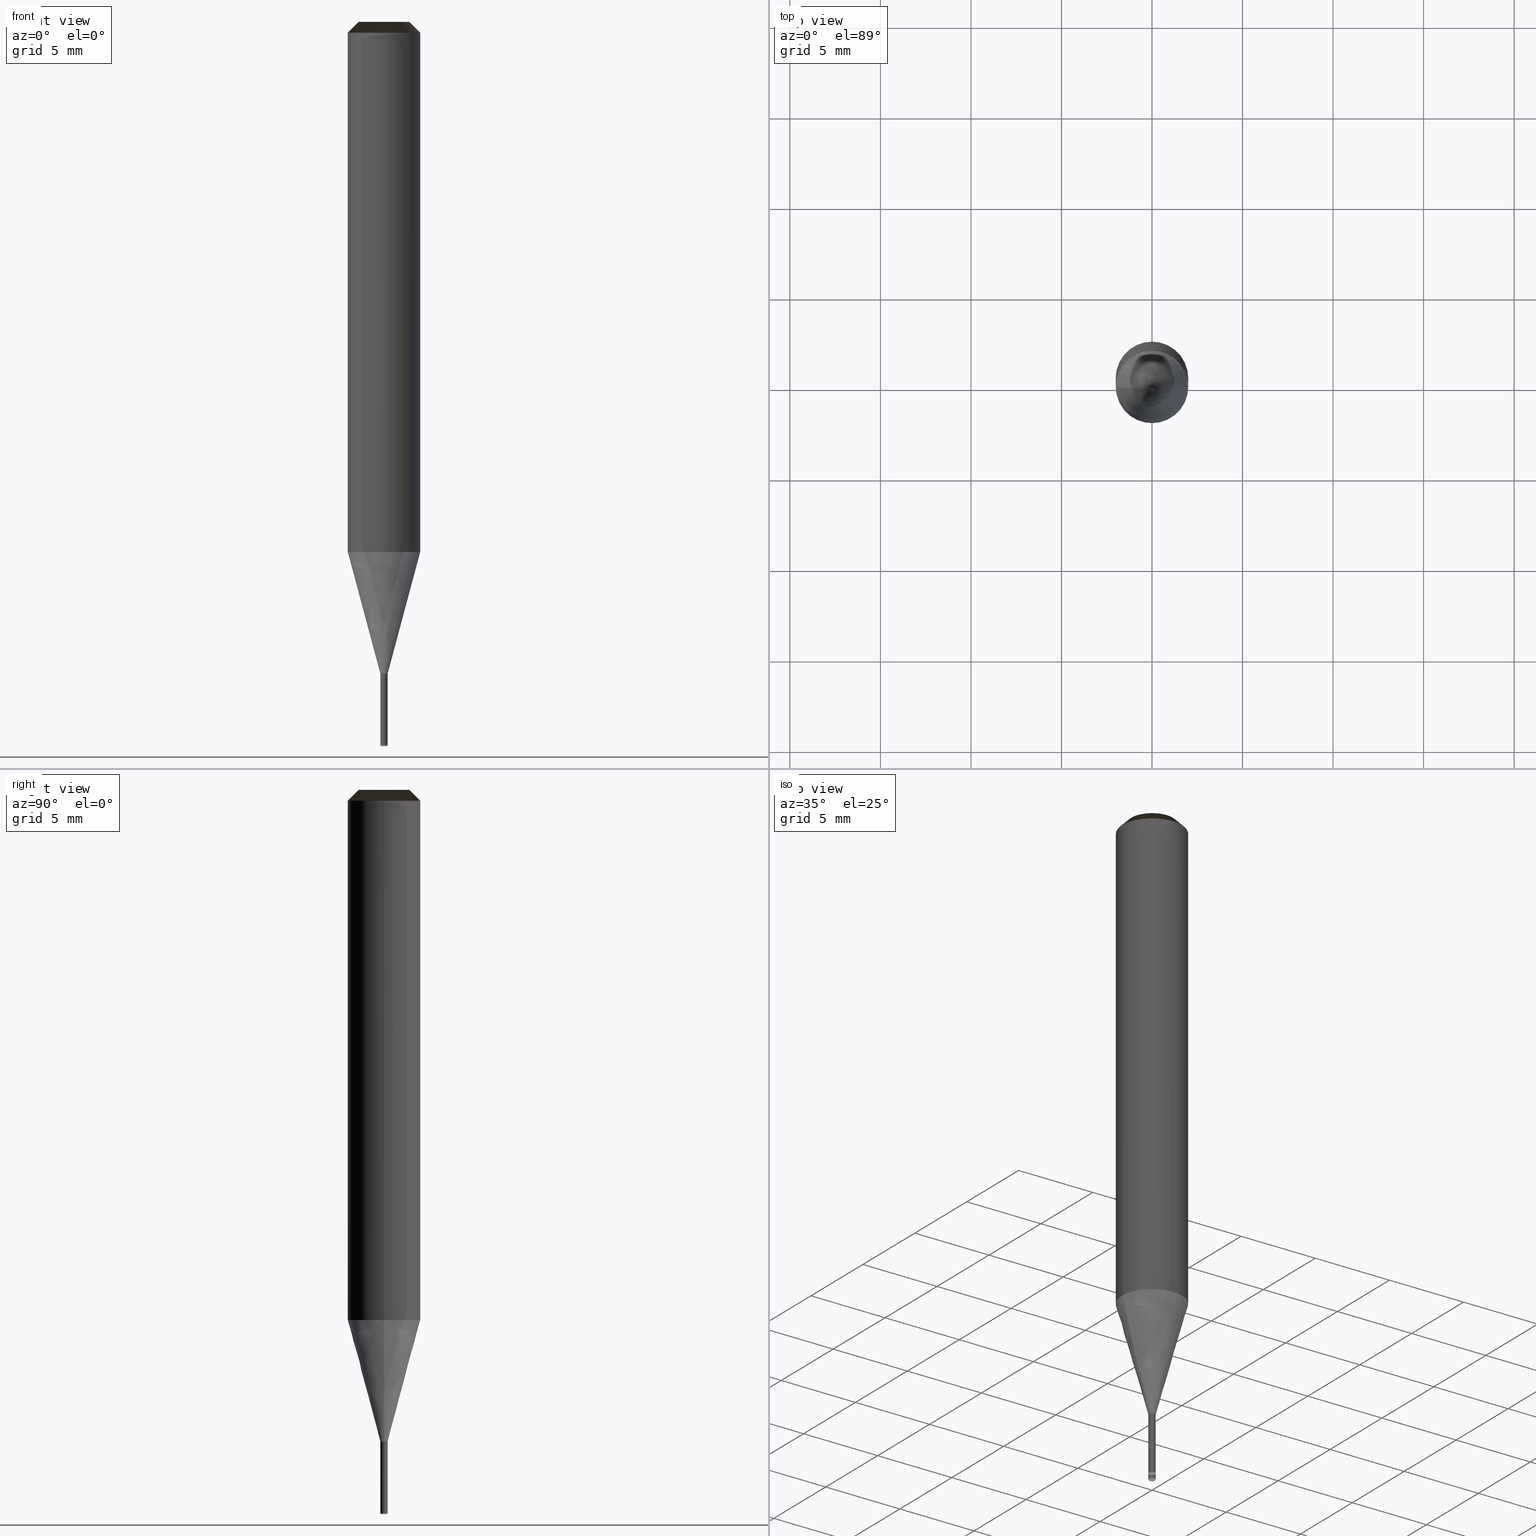
[diagram: canonical four-view strip — front | top / right | iso, engineering-drawing reading convention]
A machine part, canonical four-view strip (front | top / right | iso — engineering-drawing reading convention). The complete STEP part file that produces these views, byte-faithful:
ISO-10303-21;
HEADER;
/* Generated by ISBE GmbH (www.isbe.de) */
/* OPTION: using custom schema-name function */

FILE_DESCRIPTION(
/* description */ (''),
/* implementation_level */ '2;1');

FILE_NAME(
/*name*/ 'SHRN-2004-R0005-040-STH',
/*time_stamp*/'2023-9-15T11:24:45',
/*author*/ ('ISBE GmbH'),
/*organization*/ ('ISBE GmbH'),
/*preprocessor_version*/ 'STEP IO v1.0',
/*originating_system*/ '',
/*authorisation*/ '');

FILE_SCHEMA (('AUTOMOTIVE_DESIGN'));
ENDSEC;

DATA;
#10=SHAPE_DEFINITION_REPRESENTATION(#11,#57);
#11=PRODUCT_DEFINITION_SHAPE('Document','',#13);
#12=PRODUCT_DEFINITION_CONTEXT('3D Mechanical Parts',#17,'design');
#13=PRODUCT_DEFINITION('A','First version',#14,#12);
#14=PRODUCT_DEFINITION_FORMATION_WITH_SPECIFIED_SOURCE('A','First version',#19,.MADE.);
#15=PRODUCT_RELATED_PRODUCT_CATEGORY('tool','tool',(#19));
#16=APPLICATION_PROTOCOL_DEFINITION('Draft International Standard', 'automotive_design',1999,#17);
#17=APPLICATION_CONTEXT('data for automotive mechanical design processes');
#18=PRODUCT_CONTEXT('3D Mechanical Parts',#17,'mechanical');
#19=PRODUCT('Document','Document','ISBE converted to STEP',(#18));
#20=(
LENGTH_UNIT()
NAMED_UNIT(*)
SI_UNIT(.MILLI.,.METRE.)
);
#21=(
NAMED_UNIT(*)
PLANE_ANGLE_UNIT()
SI_UNIT($,.RADIAN.)
);
#22=DIMENSIONAL_EXPONENTS(0.,0.,0.,0.,0.,0.,0.);
#23=PLANE_ANGLE_MEASURE_WITH_UNIT(PLANE_ANGLE_MEASURE(0.01745329252),#21);
#24=(
CONVERSION_BASED_UNIT('DEGREES',#23)
NAMED_UNIT(#22)
PLANE_ANGLE_UNIT()
);
#25=(
NAMED_UNIT(*)
SI_UNIT($,.STERADIAN.)
SOLID_ANGLE_UNIT()
);
#26=UNCERTAINTY_MEASURE_WITH_UNIT(LENGTH_MEASURE(0.001),#20, 'DISTANCE_ACCURACY_VALUE', 'Maximum model space distance between geometric entities at asserted connectivities');
#27=(
GEOMETRIC_REPRESENTATION_CONTEXT(3)
GLOBAL_UNCERTAINTY_ASSIGNED_CONTEXT((#26))
GLOBAL_UNIT_ASSIGNED_CONTEXT((#25,#24,#20))
REPRESENTATION_CONTEXT('ID1','3D')
);
#28=CARTESIAN_POINT('',(0.0,0.0,0.0));
#29=DIRECTION('',(1.0,0.0,0.0));
#30=DIRECTION('',(0.0,0.0,1.0));
#31=AXIS2_PLACEMENT_3D('',#28,#30,#29);
#32=CARTESIAN_POINT('',(0.0,0.0,0.0));
#33=DIRECTION('',(1.0,0.0,0.0));
#34=DIRECTION('',(0.0,0.0,1.0));
#35=AXIS2_PLACEMENT_3D('',#32,#34,#33);
#36=CARTESIAN_POINT('',(0.0,0.0,0.0));
#37=DIRECTION('',(1.0,0.0,0.0));
#38=DIRECTION('',(0.0,0.0,1.0));
#39=AXIS2_PLACEMENT_3D('',#36,#38,#37);
#40=CARTESIAN_POINT('',(0.0,0.0,0.0));
#41=DIRECTION('',(0.0,0.0,1.0));
#42=DIRECTION('',(1.0,0.0,0.0));
#43=AXIS2_PLACEMENT_3D('MCS',#40,#42,#41);
#44=CARTESIAN_POINT('',(0.0,0.0,29.282));
#45=DIRECTION('',(0.0,0.0,1.0));
#46=DIRECTION('',(1.0,0.0,0.0));
#47=AXIS2_PLACEMENT_3D('PCS',#44,#46,#45);
#48=CARTESIAN_POINT('',(0.0,0.0,-10.718));
#49=DIRECTION('',(0.0,0.0,1.0));
#50=DIRECTION('',(1.0,0.0,0.0));
#51=AXIS2_PLACEMENT_3D('CIP',#48,#50,#49);
#52=CARTESIAN_POINT('',(0.0,-0.2,-10.718));
#53=DIRECTION('',(0.0,0.0,1.0));
#54=DIRECTION('',(1.0,0.0,0.0));
#55=AXIS2_PLACEMENT_3D('CRP',#52,#54,#53);
#57=SHAPE_REPRESENTATION('Document',(#31,#35,#39,#43,#47,#51,#55),#27);
#58=DIRECTION('',(1.0,0.0,0.0));
#59=DIRECTION('',(0.0,0.0,1.0));
#60=CARTESIAN_POINT('',(-0.001999899997,-0.00002,-10.718));
#61=CARTESIAN_POINT('',(-0.001901920408,-0.009817469061,-10.718));
#62=CARTESIAN_POINT('',(-0.00180090251,-0.01991875373,-10.718));
#63=CARTESIAN_POINT('',(-0.001700567407,-0.029951762394,-10.718));
#64=CARTESIAN_POINT('',(-0.00160040031,-0.039967971163,-10.718));
#65=CARTESIAN_POINT('',(-0.001500300158,-0.049977485926,-10.718));
#66=CARTESIAN_POINT('',(-0.001400233423,-0.059983658994,-10.718));
#67=CARTESIAN_POINT('',(-0.00130018577,-0.06998792408,-10.718));
#68=CARTESIAN_POINT('',(-0.001200150037,-0.079990997243,-10.718));
#69=CARTESIAN_POINT('',(-0.001100122247,-0.089993276032,-10.718));
#70=CARTESIAN_POINT('',(-0.001000100018,-0.099994998875,-10.718));
#71=CARTESIAN_POINT('',(-0.000900081831,-0.109996317451,-10.718));
#72=CARTESIAN_POINT('',(-0.000800066676,-0.119997332859,-10.718));
#73=CARTESIAN_POINT('',(-0.000700053853,-0.129998115081,-10.718));
#74=CARTESIAN_POINT('',(-0.000600042862,-0.139998714096,-10.718));
#75=CARTESIAN_POINT('',(-0.000500033337,-0.149999166553,-10.718));
#76=CARTESIAN_POINT('',(-0.000453482282,-0.152308497836,-10.71794664874));
#77=CARTESIAN_POINT('',(-0.000358697149,-0.154613001891,-10.717786708815));
#78=CARTESIAN_POINT('',(-0.00021376815,-0.156907672131,-10.717520521544));
#79=CARTESIAN_POINT('',(-0.000016928786,-0.159187474991,-10.717148654984));
#80=CARTESIAN_POINT('',(0.000233422461,-0.161447358755,-10.716671902718));
#81=CARTESIAN_POINT('',(0.000538701174,-0.163682263036,-10.716091282159));
#82=CARTESIAN_POINT('',(0.000900116977,-0.165887128943,-10.71540803238));
#83=CARTESIAN_POINT('',(0.001318654632,-0.168056909993,-10.71462361147));
#84=CARTESIAN_POINT('',(0.001795056445,-0.170186583757,-10.713739693424));
#85=CARTESIAN_POINT('',(0.002329806147,-0.172271164286,-10.712758164568));
#86=CARTESIAN_POINT('',(0.00292311444,-0.174305715273,-10.711681119532));
#87=CARTESIAN_POINT('',(0.00357490634,-0.17628536395,-10.710510856786));
#88=CARTESIAN_POINT('',(0.004284810478,-0.178205315669,-10.70924987373));
#89=CARTESIAN_POINT('',(0.005052150487,-0.180060869107,-10.707900861364));
#90=CARTESIAN_POINT('',(0.005875938592,-0.181847432022,-10.706466698549));
#91=CARTESIAN_POINT('',(0.006754871497,-0.18356053747,-10.704950445861));
#92=CARTESIAN_POINT('',(0.007687328654,-0.185195860364,-10.703355339059));
#93=CARTESIAN_POINT('',(0.008671372975,-0.186749234264,-10.701684782182));
#94=CARTESIAN_POINT('',(0.009704754026,-0.188216668261,-10.699942340283));
#95=CARTESIAN_POINT('',(0.010784913716,-0.189594363795,-10.698131731819));
#96=CARTESIAN_POINT('',(0.011908994485,-0.190878731272,-10.696256820721));
#97=CARTESIAN_POINT('',(0.013073849952,-0.192066406298,-10.694321608144));
#98=CARTESIAN_POINT('',(0.014276057982,-0.193154265373,-10.692330223928));
#99=CARTESIAN_POINT('',(0.015511936086,-0.194139440879,-10.690286917789));
#100=CARTESIAN_POINT('',(0.016777559062,-0.195019335179,-10.688196050244));
#101=CARTESIAN_POINT('',(0.018068778745,-0.195791633688,-10.686062083309));
#102=CARTESIAN_POINT('',(0.019381245741,-0.196454316729,-10.683889570979));
#103=CARTESIAN_POINT('',(0.020710432953,-0.197005670056,-10.681683149504));
#104=CARTESIAN_POINT('',(0.022051660738,-0.197444293886,-10.679447527498));
#105=CARTESIAN_POINT('',(0.023400123481,-0.197769110336,-10.677187475891));
#106=CARTESIAN_POINT('',(0.02475091737,-0.197979369143,-10.674907817748));
#107=CARTESIAN_POINT('',(0.026099069144,-0.198074651606,-10.672613417973));
#108=CARTESIAN_POINT('',(0.027439565568,-0.198054872659,-10.670309172932));
#109=CARTESIAN_POINT('',(0.028767383397,-0.197920281054,-10.668));
#110=CARTESIAN_POINT('',(0.067904681786,-0.188119521027,-10.598));
#111=CARTESIAN_POINT('',(0.104278627972,-0.170663316938,-10.528));
#112=CARTESIAN_POINT('',(0.136408999653,-0.146262041603,-10.458));
#113=CARTESIAN_POINT('',(0.16298826499,-0.115908694564,-10.388));
#114=CARTESIAN_POINT('',(0.182934792063,-0.080838492396,-10.318));
#115=CARTESIAN_POINT('',(0.001999899997,0.00002,-10.718));
#116=CARTESIAN_POINT('',(0.001901920408,0.009817469061,-10.718));
#117=CARTESIAN_POINT('',(0.00180090251,0.01991875373,-10.718));
#118=CARTESIAN_POINT('',(0.001700567407,0.029951762394,-10.718));
#119=CARTESIAN_POINT('',(0.00160040031,0.039967971163,-10.718));
#120=CARTESIAN_POINT('',(0.001500300158,0.049977485926,-10.718));
#121=CARTESIAN_POINT('',(0.001400233423,0.059983658994,-10.718));
#122=CARTESIAN_POINT('',(0.00130018577,0.06998792408,-10.718));
#123=CARTESIAN_POINT('',(0.001200150037,0.079990997243,-10.718));
#124=CARTESIAN_POINT('',(0.001100122247,0.089993276032,-10.718));
#125=CARTESIAN_POINT('',(0.001000100018,0.099994998875,-10.718));
#126=CARTESIAN_POINT('',(0.000900081831,0.109996317451,-10.718));
#127=CARTESIAN_POINT('',(0.000800066676,0.119997332859,-10.718));
#128=CARTESIAN_POINT('',(0.000700053853,0.129998115081,-10.718));
#129=CARTESIAN_POINT('',(0.000600042862,0.139998714096,-10.718));
#130=CARTESIAN_POINT('',(0.000500033337,0.149999166553,-10.718));
#131=CARTESIAN_POINT('',(0.000453482282,0.152308497836,-10.71794664874));
#132=CARTESIAN_POINT('',(0.000358697149,0.154613001891,-10.717786708815));
#133=CARTESIAN_POINT('',(0.00021376815,0.156907672131,-10.717520521544));
#134=CARTESIAN_POINT('',(0.000016928786,0.159187474991,-10.717148654984));
#135=CARTESIAN_POINT('',(-0.000233422461,0.161447358755,-10.716671902718));
#136=CARTESIAN_POINT('',(-0.000538701174,0.163682263036,-10.716091282159));
#137=CARTESIAN_POINT('',(-0.000900116977,0.165887128943,-10.71540803238));
#138=CARTESIAN_POINT('',(-0.001318654632,0.168056909993,-10.71462361147));
#139=CARTESIAN_POINT('',(-0.001795056445,0.170186583757,-10.713739693424));
#140=CARTESIAN_POINT('',(-0.002329806147,0.172271164286,-10.712758164568));
#141=CARTESIAN_POINT('',(-0.00292311444,0.174305715273,-10.711681119532));
#142=CARTESIAN_POINT('',(-0.00357490634,0.17628536395,-10.710510856786));
#143=CARTESIAN_POINT('',(-0.004284810478,0.178205315669,-10.70924987373));
#144=CARTESIAN_POINT('',(-0.005052150487,0.180060869107,-10.707900861364));
#145=CARTESIAN_POINT('',(-0.005875938592,0.181847432022,-10.706466698549));
#146=CARTESIAN_POINT('',(-0.006754871497,0.18356053747,-10.704950445861));
#147=CARTESIAN_POINT('',(-0.007687328654,0.185195860364,-10.703355339059));
#148=CARTESIAN_POINT('',(-0.008671372975,0.186749234264,-10.701684782182));
#149=CARTESIAN_POINT('',(-0.009704754026,0.188216668261,-10.699942340283));
#150=CARTESIAN_POINT('',(-0.010784913716,0.189594363795,-10.698131731819));
#151=CARTESIAN_POINT('',(-0.011908994485,0.190878731272,-10.696256820721));
#152=CARTESIAN_POINT('',(-0.013073849952,0.192066406298,-10.694321608144));
#153=CARTESIAN_POINT('',(-0.014276057982,0.193154265373,-10.692330223928));
#154=CARTESIAN_POINT('',(-0.015511936086,0.194139440879,-10.690286917789));
#155=CARTESIAN_POINT('',(-0.016777559062,0.195019335179,-10.688196050244));
#156=CARTESIAN_POINT('',(-0.018068778745,0.195791633688,-10.686062083309));
#157=CARTESIAN_POINT('',(-0.019381245741,0.196454316729,-10.683889570979));
#158=CARTESIAN_POINT('',(-0.020710432953,0.197005670056,-10.681683149504));
#159=CARTESIAN_POINT('',(-0.022051660738,0.197444293886,-10.679447527498));
#160=CARTESIAN_POINT('',(-0.023400123481,0.197769110336,-10.677187475891));
#161=CARTESIAN_POINT('',(-0.02475091737,0.197979369143,-10.674907817748));
#162=CARTESIAN_POINT('',(-0.026099069144,0.198074651606,-10.672613417973));
#163=CARTESIAN_POINT('',(-0.027439565568,0.198054872659,-10.670309172932));
#164=CARTESIAN_POINT('',(-0.028767383397,0.197920281054,-10.668));
#165=CARTESIAN_POINT('',(-0.067904681786,0.188119521027,-10.598));
#166=CARTESIAN_POINT('',(-0.104278627972,0.170663316938,-10.528));
#167=CARTESIAN_POINT('',(-0.136408999653,0.146262041603,-10.458));
#168=CARTESIAN_POINT('',(-0.16298826499,0.115908694564,-10.388));
#169=CARTESIAN_POINT('',(-0.182934792063,0.080838492396,-10.318));
#170=CARTESIAN_POINT('',(0.0,0.0,-10.718));
#171=CARTESIAN_POINT('',(0.15,0.0,-10.718));
#172=CARTESIAN_POINT('',(0.15,0.15,-10.718));
#173=CARTESIAN_POINT('',(0.0,0.15,-10.718));
#174=CARTESIAN_POINT('',(-0.15,0.15,-10.718));
#175=CARTESIAN_POINT('',(-0.15,0.0,-10.718));
#176=CARTESIAN_POINT('',(0.170710678119,0.0,-10.718));
#177=CARTESIAN_POINT('',(0.170710678119,0.170710678119,-10.718));
#178=CARTESIAN_POINT('',(0.0,0.170710678119,-10.718));
#179=CARTESIAN_POINT('',(-0.170710678119,0.170710678119,-10.718));
#180=CARTESIAN_POINT('',(-0.170710678119,0.0,-10.718));
#181=CARTESIAN_POINT('',(0.185355339059,0.0,-10.703355339059));
#182=CARTESIAN_POINT('',(0.185355339059,0.185355339059,-10.703355339059));
#183=CARTESIAN_POINT('',(0.0,0.185355339059,-10.703355339059));
#184=CARTESIAN_POINT('',(-0.185355339059,0.185355339059,-10.703355339059));
#185=CARTESIAN_POINT('',(-0.185355339059,0.0,-10.703355339059));
#186=CARTESIAN_POINT('',(0.2,0.0,-10.688710678119));
#187=CARTESIAN_POINT('',(0.2,0.2,-10.688710678119));
#188=CARTESIAN_POINT('',(0.0,0.2,-10.688710678119));
#189=CARTESIAN_POINT('',(-0.2,0.2,-10.688710678119));
#190=CARTESIAN_POINT('',(-0.2,0.0,-10.688710678119));
#191=CARTESIAN_POINT('',(0.2,0.0,-10.668));
#192=CARTESIAN_POINT('',(0.2,0.2,-10.668));
#193=CARTESIAN_POINT('',(0.0,0.2,-10.668));
#194=CARTESIAN_POINT('',(-0.2,0.2,-10.668));
#195=CARTESIAN_POINT('',(-0.2,0.0,-10.668));
#196=CARTESIAN_POINT('',(0.2,0.0,-10.318));
#197=CARTESIAN_POINT('',(0.2,0.2,-10.318));
#198=CARTESIAN_POINT('',(0.0,0.2,-10.318));
#199=CARTESIAN_POINT('',(-0.2,0.2,-10.318));
#200=CARTESIAN_POINT('',(-0.2,0.0,-10.318));
#201=CARTESIAN_POINT('',(0.0,0.0,-10.318));
#202=CARTESIAN_POINT('',(-0.15,-0.15,-10.718));
#203=CARTESIAN_POINT('',(0.0,-0.15,-10.718));
#204=CARTESIAN_POINT('',(0.15,-0.15,-10.718));
#205=CARTESIAN_POINT('',(-0.170710678119,-0.170710678119,-10.718));
#206=CARTESIAN_POINT('',(0.0,-0.170710678119,-10.718));
#207=CARTESIAN_POINT('',(0.170710678119,-0.170710678119,-10.718));
#208=CARTESIAN_POINT('',(-0.185355339059,-0.185355339059,-10.703355339059));
#209=CARTESIAN_POINT('',(0.0,-0.185355339059,-10.703355339059));
#210=CARTESIAN_POINT('',(0.185355339059,-0.185355339059,-10.703355339059));
#211=CARTESIAN_POINT('',(-0.2,-0.2,-10.688710678119));
#212=CARTESIAN_POINT('',(0.0,-0.2,-10.688710678119));
#213=CARTESIAN_POINT('',(0.2,-0.2,-10.688710678119));
#214=CARTESIAN_POINT('',(-0.2,-0.2,-10.668));
#215=CARTESIAN_POINT('',(0.0,-0.2,-10.668));
#216=CARTESIAN_POINT('',(0.2,-0.2,-10.668));
#217=CARTESIAN_POINT('',(-0.2,-0.2,-10.318));
#218=CARTESIAN_POINT('',(0.0,-0.2,-10.318));
#219=CARTESIAN_POINT('',(0.2,-0.2,-10.318));
#220=CARTESIAN_POINT('',(0.2,0.0,-6.717691453624));
#221=CARTESIAN_POINT('',(0.2,0.2,-6.717691453624));
#222=CARTESIAN_POINT('',(0.0,0.2,-6.717691453624));
#223=CARTESIAN_POINT('',(-0.2,0.2,-6.717691453624));
#224=CARTESIAN_POINT('',(-0.2,0.0,-6.717691453624));
#225=CARTESIAN_POINT('',(2.0,0.0,0.0));
#226=CARTESIAN_POINT('',(2.0,2.0,0.0));
#227=CARTESIAN_POINT('',(0.0,2.0,0.0));
#228=CARTESIAN_POINT('',(-2.0,2.0,0.0));
#229=CARTESIAN_POINT('',(-2.0,0.0,0.0));
#230=CARTESIAN_POINT('',(2.0,0.0,28.682));
#231=CARTESIAN_POINT('',(2.0,2.0,28.682));
#232=CARTESIAN_POINT('',(0.0,2.0,28.682));
#233=CARTESIAN_POINT('',(-2.0,2.0,28.682));
#234=CARTESIAN_POINT('',(-2.0,0.0,28.682));
#235=CARTESIAN_POINT('',(1.4,0.0,29.282));
#236=CARTESIAN_POINT('',(1.4,1.4,29.282));
#237=CARTESIAN_POINT('',(0.0,1.4,29.282));
#238=CARTESIAN_POINT('',(-1.4,1.4,29.282));
#239=CARTESIAN_POINT('',(-1.4,0.0,29.282));
#240=CARTESIAN_POINT('',(0.0,0.0,29.282));
#241=CARTESIAN_POINT('',(-0.2,-0.2,-6.717691453624));
#242=CARTESIAN_POINT('',(0.0,-0.2,-6.717691453624));
#243=CARTESIAN_POINT('',(0.2,-0.2,-6.717691453624));
#244=CARTESIAN_POINT('',(-2.0,-2.0,0.0));
#245=CARTESIAN_POINT('',(0.0,-2.0,0.0));
#246=CARTESIAN_POINT('',(2.0,-2.0,0.0));
#247=CARTESIAN_POINT('',(-2.0,-2.0,28.682));
#248=CARTESIAN_POINT('',(0.0,-2.0,28.682));
#249=CARTESIAN_POINT('',(2.0,-2.0,28.682));
#250=CARTESIAN_POINT('',(-1.4,-1.4,29.282));
#251=CARTESIAN_POINT('',(0.0,-1.4,29.282));
#252=CARTESIAN_POINT('',(1.4,-1.4,29.282));
#253=(
BOUNDED_CURVE()
B_SPLINE_CURVE(1,(#60,#61,#62,#63,#64,#65,#66,#67,#68,#69,#70,#71,#72,#73,#74,#75,#76,#77,#78,#79,#80,#81,#82,#83,#84,#85,#86,#87,#88,#89,#90,#91,#92,#93,#94,#95,#96,#97,#98,#99,#100,#101,#102,#103,#104,#105,#106,#107,#108,#109,#110,#111,#112,#113,#114),.UNSPECIFIED.,.F.,.F.)
B_SPLINE_CURVE_WITH_KNOTS((2,1,1,1,1,1,1,1,1,1,1,1,1,1,1,1,1,1,1,1,1,1,1,1,1,1,1,1,1,1,1,1,1,1,1,1,1,1,1,1,1,1,1,1,1,1,1,1,1,1,1,1,1,1,2),
(0.0,0.015348375209,0.031172697412,0.046890060793,0.062581106041,0.078261664692,0.093936988361,0.109609323049,0.125279790513,0.140949013539,0.156617365638,0.172285084426,0.187952328283,0.203619206838,0.219285798388,0.234952160345,0.238571397698,0.242193102036,0.24581889228,0.249450484687,0.253089674718,0.25673831597,0.260398296509,0.264071513001,0.267759843164,0.271465117094,0.275189088111,0.278933403746,0.28269957753,0.286488962199,0.290302724887,0.294141824818,0.298006993935,0.301898720801,0.305817238039,0.309762513476,0.313734245082,0.317731859696,0.321754515498,0.325801108099,0.32987028007,0.333960433724,0.33806974689,0.342196191432,0.346337554226,0.350491460303,0.354655397859,0.358826744833,0.363002796733,0.367180795405,0.493744636324,0.620308477243,0.746872318162,0.873436159081,1.0),.UNSPECIFIED.)
CURVE()
GEOMETRIC_REPRESENTATION_ITEM()
RATIONAL_B_SPLINE_CURVE((1.0,1.0,1.0,1.0,1.0,1.0,1.0,1.0,1.0,1.0,1.0,1.0,1.0,1.0,1.0,1.0,1.0,1.0,1.0,1.0,1.0,1.0,1.0,1.0,1.0,1.0,1.0,1.0,1.0,1.0,1.0,1.0,1.0,1.0,1.0,1.0,1.0,1.0,1.0,1.0,1.0,1.0,1.0,1.0,1.0,1.0,1.0,1.0,1.0,1.0,1.0,1.0,1.0,1.0,1.0))
REPRESENTATION_ITEM('')
);
#254=(
BOUNDED_CURVE()
B_SPLINE_CURVE(1,(#115,#116,#117,#118,#119,#120,#121,#122,#123,#124,#125,#126,#127,#128,#129,#130,#131,#132,#133,#134,#135,#136,#137,#138,#139,#140,#141,#142,#143,#144,#145,#146,#147,#148,#149,#150,#151,#152,#153,#154,#155,#156,#157,#158,#159,#160,#161,#162,#163,#164,#165,#166,#167,#168,#169),.UNSPECIFIED.,.F.,.F.)
B_SPLINE_CURVE_WITH_KNOTS((2,1,1,1,1,1,1,1,1,1,1,1,1,1,1,1,1,1,1,1,1,1,1,1,1,1,1,1,1,1,1,1,1,1,1,1,1,1,1,1,1,1,1,1,1,1,1,1,1,1,1,1,1,1,2),
(0.0,0.015348375209,0.031172697412,0.046890060793,0.062581106041,0.078261664692,0.093936988361,0.109609323049,0.125279790513,0.140949013539,0.156617365638,0.172285084426,0.187952328283,0.203619206838,0.219285798388,0.234952160345,0.238571397698,0.242193102036,0.24581889228,0.249450484687,0.253089674718,0.25673831597,0.260398296509,0.264071513001,0.267759843164,0.271465117094,0.275189088111,0.278933403746,0.28269957753,0.286488962199,0.290302724887,0.294141824818,0.298006993935,0.301898720801,0.305817238039,0.309762513476,0.313734245082,0.317731859696,0.321754515498,0.325801108099,0.32987028007,0.333960433724,0.33806974689,0.342196191432,0.346337554226,0.350491460303,0.354655397859,0.358826744833,0.363002796733,0.367180795405,0.493744636324,0.620308477243,0.746872318162,0.873436159081,1.0),.UNSPECIFIED.)
CURVE()
GEOMETRIC_REPRESENTATION_ITEM()
RATIONAL_B_SPLINE_CURVE((1.0,1.0,1.0,1.0,1.0,1.0,1.0,1.0,1.0,1.0,1.0,1.0,1.0,1.0,1.0,1.0,1.0,1.0,1.0,1.0,1.0,1.0,1.0,1.0,1.0,1.0,1.0,1.0,1.0,1.0,1.0,1.0,1.0,1.0,1.0,1.0,1.0,1.0,1.0,1.0,1.0,1.0,1.0,1.0,1.0,1.0,1.0,1.0,1.0,1.0,1.0,1.0,1.0,1.0,1.0))
REPRESENTATION_ITEM('')
);
#255=SHAPE_REPRESENTATION_RELATIONSHIP('','',#57,#256);
#256=GEOMETRICALLY_BOUNDED_WIREFRAME_SHAPE_REPRESENTATION('Curves',(#257,#31),#27);
#257=GEOMETRIC_CURVE_SET('CurveSet',(#253,#254));
#258=(
BOUNDED_SURFACE()
B_SPLINE_SURFACE(1,2,(
(#170,#170,#170,#170,#170),
(#171,#172,#173,#174,#175)
), .UNSPECIFIED.,.F.,.F.,.F.)
B_SPLINE_SURFACE_WITH_KNOTS((2,2),(3,2,3),(
0.0,1.0),(
0.0,0.5,1.0), .UNSPECIFIED.)
GEOMETRIC_REPRESENTATION_ITEM()
RATIONAL_B_SPLINE_SURFACE(((1.0,0.707106781187,1.0,0.707106781187,1.0),
(1.0,0.707106781187,1.0,0.707106781187,1.0)
))
REPRESENTATION_ITEM('')
SURFACE()
);
#259=(
BOUNDED_CURVE()
B_SPLINE_CURVE(2,(#171,#172,#173,#174,#175),.UNSPECIFIED.,.F.,.F.)
B_SPLINE_CURVE_WITH_KNOTS((3,2,3),
(0.0,0.5,1.0),.UNSPECIFIED.)
CURVE()
GEOMETRIC_REPRESENTATION_ITEM()
RATIONAL_B_SPLINE_CURVE((1.0,0.707106781187,1.0,0.707106781187,1.0))
REPRESENTATION_ITEM('')
);
#260=(
BOUNDED_CURVE()
B_SPLINE_CURVE(1,(#175,#170),.UNSPECIFIED.,.F.,.F.)
B_SPLINE_CURVE_WITH_KNOTS((2,2),
(0.0,1.0),.UNSPECIFIED.)
CURVE()
GEOMETRIC_REPRESENTATION_ITEM()
RATIONAL_B_SPLINE_CURVE((1.0,1.0))
REPRESENTATION_ITEM('')
);
#261=(
BOUNDED_CURVE()
B_SPLINE_CURVE(1,(#170,#171),.UNSPECIFIED.,.F.,.F.)
B_SPLINE_CURVE_WITH_KNOTS((2,2),
(0.0,1.0),.UNSPECIFIED.)
CURVE()
GEOMETRIC_REPRESENTATION_ITEM()
RATIONAL_B_SPLINE_CURVE((1.0,1.0))
REPRESENTATION_ITEM('')
);
#262=VERTEX_POINT('',#170);
#263=VERTEX_POINT('',#171);
#264=VERTEX_POINT('',#175);
#265=EDGE_CURVE('',#263,#264,#259,.T.);
#266=EDGE_CURVE('',#264,#262,#260,.T.);
#267=EDGE_CURVE('',#262,#263,#261,.T.);
#268=ORIENTED_EDGE('',*,*,#265,.T.);
#269=ORIENTED_EDGE('',*,*,#266,.T.);
#270=ORIENTED_EDGE('',*,*,#267,.T.);
#271=EDGE_LOOP('',(#268,#269,#270));
#272=FACE_OUTER_BOUND('',#271,.T.);
#273=ADVANCED_FACE('',(#272),#258,.T.);
#274=(
BOUNDED_SURFACE()
B_SPLINE_SURFACE(2,2,(
(#171,#172,#173,#174,#175),
(#176,#177,#178,#179,#180),
(#181,#182,#183,#184,#185),
(#186,#187,#188,#189,#190),
(#191,#192,#193,#194,#195)
), .UNSPECIFIED.,.F.,.F.,.F.)
B_SPLINE_SURFACE_WITH_KNOTS((3,2,3),(3,2,3),(
0.0,0.5,1.0),(
0.0,0.5,1.0), .UNSPECIFIED.)
GEOMETRIC_REPRESENTATION_ITEM()
RATIONAL_B_SPLINE_SURFACE(((1.0,0.707106781187,1.0,0.707106781187,1.0),
(0.923879532511,0.653281482438,0.923879532511,0.653281482438,0.923879532511),
(1.0,0.707106781187,1.0,0.707106781187,1.0),
(0.923879532511,0.653281482438,0.923879532511,0.653281482438,0.923879532511),
(1.0,0.707106781187,1.0,0.707106781187,1.0)
))
REPRESENTATION_ITEM('')
SURFACE()
);
#275=(
BOUNDED_CURVE()
B_SPLINE_CURVE(2,(#191,#192,#193,#194,#195),.UNSPECIFIED.,.F.,.F.)
B_SPLINE_CURVE_WITH_KNOTS((3,2,3),
(0.0,0.5,1.0),.UNSPECIFIED.)
CURVE()
GEOMETRIC_REPRESENTATION_ITEM()
RATIONAL_B_SPLINE_CURVE((1.0,0.707106781187,1.0,0.707106781187,1.0))
REPRESENTATION_ITEM('')
);
#276=(
BOUNDED_CURVE()
B_SPLINE_CURVE(2,(#195,#190,#185,#180,#175),.UNSPECIFIED.,.F.,.F.)
B_SPLINE_CURVE_WITH_KNOTS((3,2,3),
(0.0,0.5,1.0),.UNSPECIFIED.)
CURVE()
GEOMETRIC_REPRESENTATION_ITEM()
RATIONAL_B_SPLINE_CURVE((1.0,0.923879532511,1.0,0.923879532511,1.0))
REPRESENTATION_ITEM('')
);
#277=(
BOUNDED_CURVE()
B_SPLINE_CURVE(2,(#175,#174,#173,#172,#171),.UNSPECIFIED.,.F.,.F.)
B_SPLINE_CURVE_WITH_KNOTS((3,2,3),
(0.0,0.5,1.0),.UNSPECIFIED.)
CURVE()
GEOMETRIC_REPRESENTATION_ITEM()
RATIONAL_B_SPLINE_CURVE((1.0,0.707106781187,1.0,0.707106781187,1.0))
REPRESENTATION_ITEM('')
);
#278=(
BOUNDED_CURVE()
B_SPLINE_CURVE(2,(#171,#176,#181,#186,#191),.UNSPECIFIED.,.F.,.F.)
B_SPLINE_CURVE_WITH_KNOTS((3,2,3),
(0.0,0.5,1.0),.UNSPECIFIED.)
CURVE()
GEOMETRIC_REPRESENTATION_ITEM()
RATIONAL_B_SPLINE_CURVE((1.0,0.923879532511,1.0,0.923879532511,1.0))
REPRESENTATION_ITEM('')
);
#279=VERTEX_POINT('',#171);
#280=VERTEX_POINT('',#175);
#281=VERTEX_POINT('',#191);
#282=VERTEX_POINT('',#195);
#283=EDGE_CURVE('',#281,#282,#275,.T.);
#284=EDGE_CURVE('',#282,#280,#276,.T.);
#285=EDGE_CURVE('',#280,#279,#277,.T.);
#286=EDGE_CURVE('',#279,#281,#278,.T.);
#287=ORIENTED_EDGE('',*,*,#283,.T.);
#288=ORIENTED_EDGE('',*,*,#284,.T.);
#289=ORIENTED_EDGE('',*,*,#285,.T.);
#290=ORIENTED_EDGE('',*,*,#286,.T.);
#291=EDGE_LOOP('',(#287,#288,#289,#290));
#292=FACE_OUTER_BOUND('',#291,.T.);
#293=ADVANCED_FACE('',(#292),#274,.T.);
#294=(
BOUNDED_SURFACE()
B_SPLINE_SURFACE(1,2,(
(#191,#192,#193,#194,#195),
(#196,#197,#198,#199,#200)
), .UNSPECIFIED.,.F.,.F.,.F.)
B_SPLINE_SURFACE_WITH_KNOTS((2,2),(3,2,3),(
0.0,1.0),(
0.0,0.5,1.0), .UNSPECIFIED.)
GEOMETRIC_REPRESENTATION_ITEM()
RATIONAL_B_SPLINE_SURFACE(((1.0,0.707106781187,1.0,0.707106781187,1.0),
(1.0,0.707106781187,1.0,0.707106781187,1.0)
))
REPRESENTATION_ITEM('')
SURFACE()
);
#295=(
BOUNDED_CURVE()
B_SPLINE_CURVE(2,(#196,#197,#198,#199,#200),.UNSPECIFIED.,.F.,.F.)
B_SPLINE_CURVE_WITH_KNOTS((3,2,3),
(0.0,0.5,1.0),.UNSPECIFIED.)
CURVE()
GEOMETRIC_REPRESENTATION_ITEM()
RATIONAL_B_SPLINE_CURVE((1.0,0.707106781187,1.0,0.707106781187,1.0))
REPRESENTATION_ITEM('')
);
#296=(
BOUNDED_CURVE()
B_SPLINE_CURVE(1,(#200,#195),.UNSPECIFIED.,.F.,.F.)
B_SPLINE_CURVE_WITH_KNOTS((2,2),
(0.0,1.0),.UNSPECIFIED.)
CURVE()
GEOMETRIC_REPRESENTATION_ITEM()
RATIONAL_B_SPLINE_CURVE((1.0,1.0))
REPRESENTATION_ITEM('')
);
#297=(
BOUNDED_CURVE()
B_SPLINE_CURVE(2,(#195,#194,#193,#192,#191),.UNSPECIFIED.,.F.,.F.)
B_SPLINE_CURVE_WITH_KNOTS((3,2,3),
(0.0,0.5,1.0),.UNSPECIFIED.)
CURVE()
GEOMETRIC_REPRESENTATION_ITEM()
RATIONAL_B_SPLINE_CURVE((1.0,0.707106781187,1.0,0.707106781187,1.0))
REPRESENTATION_ITEM('')
);
#298=(
BOUNDED_CURVE()
B_SPLINE_CURVE(1,(#191,#196),.UNSPECIFIED.,.F.,.F.)
B_SPLINE_CURVE_WITH_KNOTS((2,2),
(0.0,1.0),.UNSPECIFIED.)
CURVE()
GEOMETRIC_REPRESENTATION_ITEM()
RATIONAL_B_SPLINE_CURVE((1.0,1.0))
REPRESENTATION_ITEM('')
);
#299=VERTEX_POINT('',#191);
#300=VERTEX_POINT('',#195);
#301=VERTEX_POINT('',#196);
#302=VERTEX_POINT('',#200);
#303=EDGE_CURVE('',#301,#302,#295,.T.);
#304=EDGE_CURVE('',#302,#300,#296,.T.);
#305=EDGE_CURVE('',#300,#299,#297,.T.);
#306=EDGE_CURVE('',#299,#301,#298,.T.);
#307=ORIENTED_EDGE('',*,*,#303,.T.);
#308=ORIENTED_EDGE('',*,*,#304,.T.);
#309=ORIENTED_EDGE('',*,*,#305,.T.);
#310=ORIENTED_EDGE('',*,*,#306,.T.);
#311=EDGE_LOOP('',(#307,#308,#309,#310));
#312=FACE_OUTER_BOUND('',#311,.T.);
#313=ADVANCED_FACE('',(#312),#294,.T.);
#314=(
BOUNDED_SURFACE()
B_SPLINE_SURFACE(1,2,(
(#196,#197,#198,#199,#200),
(#201,#201,#201,#201,#201)
), .UNSPECIFIED.,.F.,.F.,.F.)
B_SPLINE_SURFACE_WITH_KNOTS((2,2),(3,2,3),(
0.0,1.0),(
0.0,0.5,1.0), .UNSPECIFIED.)
GEOMETRIC_REPRESENTATION_ITEM()
RATIONAL_B_SPLINE_SURFACE(((1.0,0.707106781187,1.0,0.707106781187,1.0),
(1.0,0.707106781187,1.0,0.707106781187,1.0)
))
REPRESENTATION_ITEM('')
SURFACE()
);
#315=(
BOUNDED_CURVE()
B_SPLINE_CURVE(1,(#201,#196),.UNSPECIFIED.,.F.,.F.)
B_SPLINE_CURVE_WITH_KNOTS((2,2),
(0.0,1.0),.UNSPECIFIED.)
CURVE()
GEOMETRIC_REPRESENTATION_ITEM()
RATIONAL_B_SPLINE_CURVE((1.0,1.0))
REPRESENTATION_ITEM('')
);
#316=(
BOUNDED_CURVE()
B_SPLINE_CURVE(2,(#196,#197,#198,#199,#200),.UNSPECIFIED.,.F.,.F.)
B_SPLINE_CURVE_WITH_KNOTS((3,2,3),
(0.0,0.5,1.0),.UNSPECIFIED.)
CURVE()
GEOMETRIC_REPRESENTATION_ITEM()
RATIONAL_B_SPLINE_CURVE((1.0,0.707106781187,1.0,0.707106781187,1.0))
REPRESENTATION_ITEM('')
);
#317=(
BOUNDED_CURVE()
B_SPLINE_CURVE(1,(#200,#201),.UNSPECIFIED.,.F.,.F.)
B_SPLINE_CURVE_WITH_KNOTS((2,2),
(0.0,1.0),.UNSPECIFIED.)
CURVE()
GEOMETRIC_REPRESENTATION_ITEM()
RATIONAL_B_SPLINE_CURVE((1.0,1.0))
REPRESENTATION_ITEM('')
);
#318=VERTEX_POINT('',#196);
#319=VERTEX_POINT('',#200);
#320=VERTEX_POINT('',#201);
#321=EDGE_CURVE('',#320,#318,#315,.T.);
#322=EDGE_CURVE('',#318,#319,#316,.T.);
#323=EDGE_CURVE('',#319,#320,#317,.T.);
#324=ORIENTED_EDGE('',*,*,#321,.T.);
#325=ORIENTED_EDGE('',*,*,#322,.T.);
#326=ORIENTED_EDGE('',*,*,#323,.T.);
#327=EDGE_LOOP('',(#324,#325,#326));
#328=FACE_OUTER_BOUND('',#327,.T.);
#329=ADVANCED_FACE('',(#328),#314,.T.);
#330=(
BOUNDED_SURFACE()
B_SPLINE_SURFACE(1,2,(
(#170,#170,#170,#170,#170),
(#175,#202,#203,#204,#171)
), .UNSPECIFIED.,.F.,.F.,.F.)
B_SPLINE_SURFACE_WITH_KNOTS((2,2),(3,2,3),(
0.0,1.0),(
0.0,0.5,1.0), .UNSPECIFIED.)
GEOMETRIC_REPRESENTATION_ITEM()
RATIONAL_B_SPLINE_SURFACE(((1.0,0.707106781187,1.0,0.707106781187,1.0),
(1.0,0.707106781187,1.0,0.707106781187,1.0)
))
REPRESENTATION_ITEM('')
SURFACE()
);
#331=(
BOUNDED_CURVE()
B_SPLINE_CURVE(1,(#175,#170),.UNSPECIFIED.,.F.,.F.)
B_SPLINE_CURVE_WITH_KNOTS((2,2),
(0.0,1.0),.UNSPECIFIED.)
CURVE()
GEOMETRIC_REPRESENTATION_ITEM()
RATIONAL_B_SPLINE_CURVE((1.0,1.0))
REPRESENTATION_ITEM('')
);
#332=(
BOUNDED_CURVE()
B_SPLINE_CURVE(1,(#170,#171),.UNSPECIFIED.,.F.,.F.)
B_SPLINE_CURVE_WITH_KNOTS((2,2),
(0.0,1.0),.UNSPECIFIED.)
CURVE()
GEOMETRIC_REPRESENTATION_ITEM()
RATIONAL_B_SPLINE_CURVE((1.0,1.0))
REPRESENTATION_ITEM('')
);
#333=(
BOUNDED_CURVE()
B_SPLINE_CURVE(2,(#171,#204,#203,#202,#175),.UNSPECIFIED.,.F.,.F.)
B_SPLINE_CURVE_WITH_KNOTS((3,2,3),
(0.0,0.5,1.0),.UNSPECIFIED.)
CURVE()
GEOMETRIC_REPRESENTATION_ITEM()
RATIONAL_B_SPLINE_CURVE((1.0,0.707106781187,1.0,0.707106781187,1.0))
REPRESENTATION_ITEM('')
);
#334=VERTEX_POINT('',#170);
#335=VERTEX_POINT('',#171);
#336=VERTEX_POINT('',#175);
#337=EDGE_CURVE('',#336,#334,#331,.T.);
#338=EDGE_CURVE('',#334,#335,#332,.T.);
#339=EDGE_CURVE('',#335,#336,#333,.T.);
#340=ORIENTED_EDGE('',*,*,#337,.T.);
#341=ORIENTED_EDGE('',*,*,#338,.T.);
#342=ORIENTED_EDGE('',*,*,#339,.T.);
#343=EDGE_LOOP('',(#340,#341,#342));
#344=FACE_OUTER_BOUND('',#343,.T.);
#345=ADVANCED_FACE('',(#344),#330,.T.);
#346=(
BOUNDED_SURFACE()
B_SPLINE_SURFACE(2,2,(
(#175,#202,#203,#204,#171),
(#180,#205,#206,#207,#176),
(#185,#208,#209,#210,#181),
(#190,#211,#212,#213,#186),
(#195,#214,#215,#216,#191)
), .UNSPECIFIED.,.F.,.F.,.F.)
B_SPLINE_SURFACE_WITH_KNOTS((3,2,3),(3,2,3),(
0.0,0.5,1.0),(
0.0,0.5,1.0), .UNSPECIFIED.)
GEOMETRIC_REPRESENTATION_ITEM()
RATIONAL_B_SPLINE_SURFACE(((1.0,0.707106781187,1.0,0.707106781187,1.0),
(0.923879532511,0.653281482438,0.923879532511,0.653281482438,0.923879532511),
(1.0,0.707106781187,1.0,0.707106781187,1.0),
(0.923879532511,0.653281482438,0.923879532511,0.653281482438,0.923879532511),
(1.0,0.707106781187,1.0,0.707106781187,1.0)
))
REPRESENTATION_ITEM('')
SURFACE()
);
#347=(
BOUNDED_CURVE()
B_SPLINE_CURVE(2,(#195,#190,#185,#180,#175),.UNSPECIFIED.,.F.,.F.)
B_SPLINE_CURVE_WITH_KNOTS((3,2,3),
(0.0,0.5,1.0),.UNSPECIFIED.)
CURVE()
GEOMETRIC_REPRESENTATION_ITEM()
RATIONAL_B_SPLINE_CURVE((1.0,0.923879532511,1.0,0.923879532511,1.0))
REPRESENTATION_ITEM('')
);
#348=(
BOUNDED_CURVE()
B_SPLINE_CURVE(2,(#175,#202,#203,#204,#171),.UNSPECIFIED.,.F.,.F.)
B_SPLINE_CURVE_WITH_KNOTS((3,2,3),
(0.0,0.5,1.0),.UNSPECIFIED.)
CURVE()
GEOMETRIC_REPRESENTATION_ITEM()
RATIONAL_B_SPLINE_CURVE((1.0,0.707106781187,1.0,0.707106781187,1.0))
REPRESENTATION_ITEM('')
);
#349=(
BOUNDED_CURVE()
B_SPLINE_CURVE(2,(#171,#176,#181,#186,#191),.UNSPECIFIED.,.F.,.F.)
B_SPLINE_CURVE_WITH_KNOTS((3,2,3),
(0.0,0.5,1.0),.UNSPECIFIED.)
CURVE()
GEOMETRIC_REPRESENTATION_ITEM()
RATIONAL_B_SPLINE_CURVE((1.0,0.923879532511,1.0,0.923879532511,1.0))
REPRESENTATION_ITEM('')
);
#350=(
BOUNDED_CURVE()
B_SPLINE_CURVE(2,(#191,#216,#215,#214,#195),.UNSPECIFIED.,.F.,.F.)
B_SPLINE_CURVE_WITH_KNOTS((3,2,3),
(0.0,0.5,1.0),.UNSPECIFIED.)
CURVE()
GEOMETRIC_REPRESENTATION_ITEM()
RATIONAL_B_SPLINE_CURVE((1.0,0.707106781187,1.0,0.707106781187,1.0))
REPRESENTATION_ITEM('')
);
#351=VERTEX_POINT('',#171);
#352=VERTEX_POINT('',#175);
#353=VERTEX_POINT('',#191);
#354=VERTEX_POINT('',#195);
#355=EDGE_CURVE('',#354,#352,#347,.T.);
#356=EDGE_CURVE('',#352,#351,#348,.T.);
#357=EDGE_CURVE('',#351,#353,#349,.T.);
#358=EDGE_CURVE('',#353,#354,#350,.T.);
#359=ORIENTED_EDGE('',*,*,#355,.T.);
#360=ORIENTED_EDGE('',*,*,#356,.T.);
#361=ORIENTED_EDGE('',*,*,#357,.T.);
#362=ORIENTED_EDGE('',*,*,#358,.T.);
#363=EDGE_LOOP('',(#359,#360,#361,#362));
#364=FACE_OUTER_BOUND('',#363,.T.);
#365=ADVANCED_FACE('',(#364),#346,.T.);
#366=(
BOUNDED_SURFACE()
B_SPLINE_SURFACE(1,2,(
(#195,#214,#215,#216,#191),
(#200,#217,#218,#219,#196)
), .UNSPECIFIED.,.F.,.F.,.F.)
B_SPLINE_SURFACE_WITH_KNOTS((2,2),(3,2,3),(
0.0,1.0),(
0.0,0.5,1.0), .UNSPECIFIED.)
GEOMETRIC_REPRESENTATION_ITEM()
RATIONAL_B_SPLINE_SURFACE(((1.0,0.707106781187,1.0,0.707106781187,1.0),
(1.0,0.707106781187,1.0,0.707106781187,1.0)
))
REPRESENTATION_ITEM('')
SURFACE()
);
#367=(
BOUNDED_CURVE()
B_SPLINE_CURVE(1,(#200,#195),.UNSPECIFIED.,.F.,.F.)
B_SPLINE_CURVE_WITH_KNOTS((2,2),
(0.0,1.0),.UNSPECIFIED.)
CURVE()
GEOMETRIC_REPRESENTATION_ITEM()
RATIONAL_B_SPLINE_CURVE((1.0,1.0))
REPRESENTATION_ITEM('')
);
#368=(
BOUNDED_CURVE()
B_SPLINE_CURVE(2,(#195,#214,#215,#216,#191),.UNSPECIFIED.,.F.,.F.)
B_SPLINE_CURVE_WITH_KNOTS((3,2,3),
(0.0,0.5,1.0),.UNSPECIFIED.)
CURVE()
GEOMETRIC_REPRESENTATION_ITEM()
RATIONAL_B_SPLINE_CURVE((1.0,0.707106781187,1.0,0.707106781187,1.0))
REPRESENTATION_ITEM('')
);
#369=(
BOUNDED_CURVE()
B_SPLINE_CURVE(1,(#191,#196),.UNSPECIFIED.,.F.,.F.)
B_SPLINE_CURVE_WITH_KNOTS((2,2),
(0.0,1.0),.UNSPECIFIED.)
CURVE()
GEOMETRIC_REPRESENTATION_ITEM()
RATIONAL_B_SPLINE_CURVE((1.0,1.0))
REPRESENTATION_ITEM('')
);
#370=(
BOUNDED_CURVE()
B_SPLINE_CURVE(2,(#196,#219,#218,#217,#200),.UNSPECIFIED.,.F.,.F.)
B_SPLINE_CURVE_WITH_KNOTS((3,2,3),
(0.0,0.5,1.0),.UNSPECIFIED.)
CURVE()
GEOMETRIC_REPRESENTATION_ITEM()
RATIONAL_B_SPLINE_CURVE((1.0,0.707106781187,1.0,0.707106781187,1.0))
REPRESENTATION_ITEM('')
);
#371=VERTEX_POINT('',#191);
#372=VERTEX_POINT('',#195);
#373=VERTEX_POINT('',#196);
#374=VERTEX_POINT('',#200);
#375=EDGE_CURVE('',#374,#372,#367,.T.);
#376=EDGE_CURVE('',#372,#371,#368,.T.);
#377=EDGE_CURVE('',#371,#373,#369,.T.);
#378=EDGE_CURVE('',#373,#374,#370,.T.);
#379=ORIENTED_EDGE('',*,*,#375,.T.);
#380=ORIENTED_EDGE('',*,*,#376,.T.);
#381=ORIENTED_EDGE('',*,*,#377,.T.);
#382=ORIENTED_EDGE('',*,*,#378,.T.);
#383=EDGE_LOOP('',(#379,#380,#381,#382));
#384=FACE_OUTER_BOUND('',#383,.T.);
#385=ADVANCED_FACE('',(#384),#366,.T.);
#386=(
BOUNDED_SURFACE()
B_SPLINE_SURFACE(1,2,(
(#200,#217,#218,#219,#196),
(#201,#201,#201,#201,#201)
), .UNSPECIFIED.,.F.,.F.,.F.)
B_SPLINE_SURFACE_WITH_KNOTS((2,2),(3,2,3),(
0.0,1.0),(
0.0,0.5,1.0), .UNSPECIFIED.)
GEOMETRIC_REPRESENTATION_ITEM()
RATIONAL_B_SPLINE_SURFACE(((1.0,0.707106781187,1.0,0.707106781187,1.0),
(1.0,0.707106781187,1.0,0.707106781187,1.0)
))
REPRESENTATION_ITEM('')
SURFACE()
);
#387=(
BOUNDED_CURVE()
B_SPLINE_CURVE(1,(#201,#196),.UNSPECIFIED.,.F.,.F.)
B_SPLINE_CURVE_WITH_KNOTS((2,2),
(0.0,1.0),.UNSPECIFIED.)
CURVE()
GEOMETRIC_REPRESENTATION_ITEM()
RATIONAL_B_SPLINE_CURVE((1.0,1.0))
REPRESENTATION_ITEM('')
);
#388=(
BOUNDED_CURVE()
B_SPLINE_CURVE(2,(#196,#219,#218,#217,#200),.UNSPECIFIED.,.F.,.F.)
B_SPLINE_CURVE_WITH_KNOTS((3,2,3),
(0.0,0.5,1.0),.UNSPECIFIED.)
CURVE()
GEOMETRIC_REPRESENTATION_ITEM()
RATIONAL_B_SPLINE_CURVE((1.0,0.707106781187,1.0,0.707106781187,1.0))
REPRESENTATION_ITEM('')
);
#389=(
BOUNDED_CURVE()
B_SPLINE_CURVE(1,(#200,#201),.UNSPECIFIED.,.F.,.F.)
B_SPLINE_CURVE_WITH_KNOTS((2,2),
(0.0,1.0),.UNSPECIFIED.)
CURVE()
GEOMETRIC_REPRESENTATION_ITEM()
RATIONAL_B_SPLINE_CURVE((1.0,1.0))
REPRESENTATION_ITEM('')
);
#390=VERTEX_POINT('',#196);
#391=VERTEX_POINT('',#200);
#392=VERTEX_POINT('',#201);
#393=EDGE_CURVE('',#392,#390,#387,.T.);
#394=EDGE_CURVE('',#390,#391,#388,.T.);
#395=EDGE_CURVE('',#391,#392,#389,.T.);
#396=ORIENTED_EDGE('',*,*,#393,.T.);
#397=ORIENTED_EDGE('',*,*,#394,.T.);
#398=ORIENTED_EDGE('',*,*,#395,.T.);
#399=EDGE_LOOP('',(#396,#397,#398));
#400=FACE_OUTER_BOUND('',#399,.T.);
#401=ADVANCED_FACE('',(#400),#386,.T.);
#402=CLOSED_SHELL('',(#273,#293,#313,#329,#345,#365,#385,#401));
#403=SHAPE_REPRESENTATION_RELATIONSHIP('','',#57,#404);
#404=ADVANCED_BREP_SHAPE_REPRESENTATION('Solid0',(#405,#31),#27);
#405=MANIFOLD_SOLID_BREP('brep',#402);
#406=(
BOUNDED_SURFACE()
B_SPLINE_SURFACE(1,2,(
(#201,#201,#201,#201,#201),
(#196,#197,#198,#199,#200)
), .UNSPECIFIED.,.F.,.F.,.F.)
B_SPLINE_SURFACE_WITH_KNOTS((2,2),(3,2,3),(
0.0,1.0),(
0.0,0.5,1.0), .UNSPECIFIED.)
GEOMETRIC_REPRESENTATION_ITEM()
RATIONAL_B_SPLINE_SURFACE(((1.0,0.707106781187,1.0,0.707106781187,1.0),
(1.0,0.707106781187,1.0,0.707106781187,1.0)
))
REPRESENTATION_ITEM('')
SURFACE()
);
#407=(
BOUNDED_CURVE()
B_SPLINE_CURVE(2,(#196,#197,#198,#199,#200),.UNSPECIFIED.,.F.,.F.)
B_SPLINE_CURVE_WITH_KNOTS((3,2,3),
(0.0,0.5,1.0),.UNSPECIFIED.)
CURVE()
GEOMETRIC_REPRESENTATION_ITEM()
RATIONAL_B_SPLINE_CURVE((1.0,0.707106781187,1.0,0.707106781187,1.0))
REPRESENTATION_ITEM('')
);
#408=(
BOUNDED_CURVE()
B_SPLINE_CURVE(1,(#200,#201),.UNSPECIFIED.,.F.,.F.)
B_SPLINE_CURVE_WITH_KNOTS((2,2),
(0.0,1.0),.UNSPECIFIED.)
CURVE()
GEOMETRIC_REPRESENTATION_ITEM()
RATIONAL_B_SPLINE_CURVE((1.0,1.0))
REPRESENTATION_ITEM('')
);
#409=(
BOUNDED_CURVE()
B_SPLINE_CURVE(1,(#201,#196),.UNSPECIFIED.,.F.,.F.)
B_SPLINE_CURVE_WITH_KNOTS((2,2),
(0.0,1.0),.UNSPECIFIED.)
CURVE()
GEOMETRIC_REPRESENTATION_ITEM()
RATIONAL_B_SPLINE_CURVE((1.0,1.0))
REPRESENTATION_ITEM('')
);
#410=VERTEX_POINT('',#196);
#411=VERTEX_POINT('',#200);
#412=VERTEX_POINT('',#201);
#413=EDGE_CURVE('',#410,#411,#407,.T.);
#414=EDGE_CURVE('',#411,#412,#408,.T.);
#415=EDGE_CURVE('',#412,#410,#409,.T.);
#416=ORIENTED_EDGE('',*,*,#413,.T.);
#417=ORIENTED_EDGE('',*,*,#414,.T.);
#418=ORIENTED_EDGE('',*,*,#415,.T.);
#419=EDGE_LOOP('',(#416,#417,#418));
#420=FACE_OUTER_BOUND('',#419,.T.);
#421=ADVANCED_FACE('',(#420),#406,.T.);
#422=(
BOUNDED_SURFACE()
B_SPLINE_SURFACE(1,2,(
(#196,#197,#198,#199,#200),
(#220,#221,#222,#223,#224)
), .UNSPECIFIED.,.F.,.F.,.F.)
B_SPLINE_SURFACE_WITH_KNOTS((2,2),(3,2,3),(
0.0,1.0),(
0.0,0.5,1.0), .UNSPECIFIED.)
GEOMETRIC_REPRESENTATION_ITEM()
RATIONAL_B_SPLINE_SURFACE(((1.0,0.707106781187,1.0,0.707106781187,1.0),
(1.0,0.707106781187,1.0,0.707106781187,1.0)
))
REPRESENTATION_ITEM('')
SURFACE()
);
#423=(
BOUNDED_CURVE()
B_SPLINE_CURVE(2,(#220,#221,#222,#223,#224),.UNSPECIFIED.,.F.,.F.)
B_SPLINE_CURVE_WITH_KNOTS((3,2,3),
(0.0,0.5,1.0),.UNSPECIFIED.)
CURVE()
GEOMETRIC_REPRESENTATION_ITEM()
RATIONAL_B_SPLINE_CURVE((1.0,0.707106781187,1.0,0.707106781187,1.0))
REPRESENTATION_ITEM('')
);
#424=(
BOUNDED_CURVE()
B_SPLINE_CURVE(1,(#224,#200),.UNSPECIFIED.,.F.,.F.)
B_SPLINE_CURVE_WITH_KNOTS((2,2),
(0.0,1.0),.UNSPECIFIED.)
CURVE()
GEOMETRIC_REPRESENTATION_ITEM()
RATIONAL_B_SPLINE_CURVE((1.0,1.0))
REPRESENTATION_ITEM('')
);
#425=(
BOUNDED_CURVE()
B_SPLINE_CURVE(2,(#200,#199,#198,#197,#196),.UNSPECIFIED.,.F.,.F.)
B_SPLINE_CURVE_WITH_KNOTS((3,2,3),
(0.0,0.5,1.0),.UNSPECIFIED.)
CURVE()
GEOMETRIC_REPRESENTATION_ITEM()
RATIONAL_B_SPLINE_CURVE((1.0,0.707106781187,1.0,0.707106781187,1.0))
REPRESENTATION_ITEM('')
);
#426=(
BOUNDED_CURVE()
B_SPLINE_CURVE(1,(#196,#220),.UNSPECIFIED.,.F.,.F.)
B_SPLINE_CURVE_WITH_KNOTS((2,2),
(0.0,1.0),.UNSPECIFIED.)
CURVE()
GEOMETRIC_REPRESENTATION_ITEM()
RATIONAL_B_SPLINE_CURVE((1.0,1.0))
REPRESENTATION_ITEM('')
);
#427=VERTEX_POINT('',#196);
#428=VERTEX_POINT('',#200);
#429=VERTEX_POINT('',#220);
#430=VERTEX_POINT('',#224);
#431=EDGE_CURVE('',#429,#430,#423,.T.);
#432=EDGE_CURVE('',#430,#428,#424,.T.);
#433=EDGE_CURVE('',#428,#427,#425,.T.);
#434=EDGE_CURVE('',#427,#429,#426,.T.);
#435=ORIENTED_EDGE('',*,*,#431,.T.);
#436=ORIENTED_EDGE('',*,*,#432,.T.);
#437=ORIENTED_EDGE('',*,*,#433,.T.);
#438=ORIENTED_EDGE('',*,*,#434,.T.);
#439=EDGE_LOOP('',(#435,#436,#437,#438));
#440=FACE_OUTER_BOUND('',#439,.T.);
#441=ADVANCED_FACE('',(#440),#422,.T.);
#442=(
BOUNDED_SURFACE()
B_SPLINE_SURFACE(1,2,(
(#220,#221,#222,#223,#224),
(#225,#226,#227,#228,#229)
), .UNSPECIFIED.,.F.,.F.,.F.)
B_SPLINE_SURFACE_WITH_KNOTS((2,2),(3,2,3),(
0.0,1.0),(
0.0,0.5,1.0), .UNSPECIFIED.)
GEOMETRIC_REPRESENTATION_ITEM()
RATIONAL_B_SPLINE_SURFACE(((1.0,0.707106781187,1.0,0.707106781187,1.0),
(1.0,0.707106781187,1.0,0.707106781187,1.0)
))
REPRESENTATION_ITEM('')
SURFACE()
);
#443=(
BOUNDED_CURVE()
B_SPLINE_CURVE(2,(#225,#226,#227,#228,#229),.UNSPECIFIED.,.F.,.F.)
B_SPLINE_CURVE_WITH_KNOTS((3,2,3),
(0.0,0.5,1.0),.UNSPECIFIED.)
CURVE()
GEOMETRIC_REPRESENTATION_ITEM()
RATIONAL_B_SPLINE_CURVE((1.0,0.707106781187,1.0,0.707106781187,1.0))
REPRESENTATION_ITEM('')
);
#444=(
BOUNDED_CURVE()
B_SPLINE_CURVE(1,(#229,#224),.UNSPECIFIED.,.F.,.F.)
B_SPLINE_CURVE_WITH_KNOTS((2,2),
(0.0,1.0),.UNSPECIFIED.)
CURVE()
GEOMETRIC_REPRESENTATION_ITEM()
RATIONAL_B_SPLINE_CURVE((1.0,1.0))
REPRESENTATION_ITEM('')
);
#445=(
BOUNDED_CURVE()
B_SPLINE_CURVE(2,(#224,#223,#222,#221,#220),.UNSPECIFIED.,.F.,.F.)
B_SPLINE_CURVE_WITH_KNOTS((3,2,3),
(0.0,0.5,1.0),.UNSPECIFIED.)
CURVE()
GEOMETRIC_REPRESENTATION_ITEM()
RATIONAL_B_SPLINE_CURVE((1.0,0.707106781187,1.0,0.707106781187,1.0))
REPRESENTATION_ITEM('')
);
#446=(
BOUNDED_CURVE()
B_SPLINE_CURVE(1,(#220,#225),.UNSPECIFIED.,.F.,.F.)
B_SPLINE_CURVE_WITH_KNOTS((2,2),
(0.0,1.0),.UNSPECIFIED.)
CURVE()
GEOMETRIC_REPRESENTATION_ITEM()
RATIONAL_B_SPLINE_CURVE((1.0,1.0))
REPRESENTATION_ITEM('')
);
#447=VERTEX_POINT('',#220);
#448=VERTEX_POINT('',#224);
#449=VERTEX_POINT('',#225);
#450=VERTEX_POINT('',#229);
#451=EDGE_CURVE('',#449,#450,#443,.T.);
#452=EDGE_CURVE('',#450,#448,#444,.T.);
#453=EDGE_CURVE('',#448,#447,#445,.T.);
#454=EDGE_CURVE('',#447,#449,#446,.T.);
#455=ORIENTED_EDGE('',*,*,#451,.T.);
#456=ORIENTED_EDGE('',*,*,#452,.T.);
#457=ORIENTED_EDGE('',*,*,#453,.T.);
#458=ORIENTED_EDGE('',*,*,#454,.T.);
#459=EDGE_LOOP('',(#455,#456,#457,#458));
#460=FACE_OUTER_BOUND('',#459,.T.);
#461=ADVANCED_FACE('',(#460),#442,.T.);
#462=(
BOUNDED_SURFACE()
B_SPLINE_SURFACE(1,2,(
(#225,#226,#227,#228,#229),
(#230,#231,#232,#233,#234)
), .UNSPECIFIED.,.F.,.F.,.F.)
B_SPLINE_SURFACE_WITH_KNOTS((2,2),(3,2,3),(
0.0,1.0),(
0.0,0.5,1.0), .UNSPECIFIED.)
GEOMETRIC_REPRESENTATION_ITEM()
RATIONAL_B_SPLINE_SURFACE(((1.0,0.707106781187,1.0,0.707106781187,1.0),
(1.0,0.707106781187,1.0,0.707106781187,1.0)
))
REPRESENTATION_ITEM('')
SURFACE()
);
#463=(
BOUNDED_CURVE()
B_SPLINE_CURVE(2,(#230,#231,#232,#233,#234),.UNSPECIFIED.,.F.,.F.)
B_SPLINE_CURVE_WITH_KNOTS((3,2,3),
(0.0,0.5,1.0),.UNSPECIFIED.)
CURVE()
GEOMETRIC_REPRESENTATION_ITEM()
RATIONAL_B_SPLINE_CURVE((1.0,0.707106781187,1.0,0.707106781187,1.0))
REPRESENTATION_ITEM('')
);
#464=(
BOUNDED_CURVE()
B_SPLINE_CURVE(1,(#234,#229),.UNSPECIFIED.,.F.,.F.)
B_SPLINE_CURVE_WITH_KNOTS((2,2),
(0.0,1.0),.UNSPECIFIED.)
CURVE()
GEOMETRIC_REPRESENTATION_ITEM()
RATIONAL_B_SPLINE_CURVE((1.0,1.0))
REPRESENTATION_ITEM('')
);
#465=(
BOUNDED_CURVE()
B_SPLINE_CURVE(2,(#229,#228,#227,#226,#225),.UNSPECIFIED.,.F.,.F.)
B_SPLINE_CURVE_WITH_KNOTS((3,2,3),
(0.0,0.5,1.0),.UNSPECIFIED.)
CURVE()
GEOMETRIC_REPRESENTATION_ITEM()
RATIONAL_B_SPLINE_CURVE((1.0,0.707106781187,1.0,0.707106781187,1.0))
REPRESENTATION_ITEM('')
);
#466=(
BOUNDED_CURVE()
B_SPLINE_CURVE(1,(#225,#230),.UNSPECIFIED.,.F.,.F.)
B_SPLINE_CURVE_WITH_KNOTS((2,2),
(0.0,1.0),.UNSPECIFIED.)
CURVE()
GEOMETRIC_REPRESENTATION_ITEM()
RATIONAL_B_SPLINE_CURVE((1.0,1.0))
REPRESENTATION_ITEM('')
);
#467=VERTEX_POINT('',#225);
#468=VERTEX_POINT('',#229);
#469=VERTEX_POINT('',#230);
#470=VERTEX_POINT('',#234);
#471=EDGE_CURVE('',#469,#470,#463,.T.);
#472=EDGE_CURVE('',#470,#468,#464,.T.);
#473=EDGE_CURVE('',#468,#467,#465,.T.);
#474=EDGE_CURVE('',#467,#469,#466,.T.);
#475=ORIENTED_EDGE('',*,*,#471,.T.);
#476=ORIENTED_EDGE('',*,*,#472,.T.);
#477=ORIENTED_EDGE('',*,*,#473,.T.);
#478=ORIENTED_EDGE('',*,*,#474,.T.);
#479=EDGE_LOOP('',(#475,#476,#477,#478));
#480=FACE_OUTER_BOUND('',#479,.T.);
#481=ADVANCED_FACE('',(#480),#462,.T.);
#482=(
BOUNDED_SURFACE()
B_SPLINE_SURFACE(1,2,(
(#230,#231,#232,#233,#234),
(#235,#236,#237,#238,#239)
), .UNSPECIFIED.,.F.,.F.,.F.)
B_SPLINE_SURFACE_WITH_KNOTS((2,2),(3,2,3),(
0.0,1.0),(
0.0,0.5,1.0), .UNSPECIFIED.)
GEOMETRIC_REPRESENTATION_ITEM()
RATIONAL_B_SPLINE_SURFACE(((1.0,0.707106781187,1.0,0.707106781187,1.0),
(1.0,0.707106781187,1.0,0.707106781187,1.0)
))
REPRESENTATION_ITEM('')
SURFACE()
);
#483=(
BOUNDED_CURVE()
B_SPLINE_CURVE(1,(#235,#230),.UNSPECIFIED.,.F.,.F.)
B_SPLINE_CURVE_WITH_KNOTS((2,2),
(0.0,1.0),.UNSPECIFIED.)
CURVE()
GEOMETRIC_REPRESENTATION_ITEM()
RATIONAL_B_SPLINE_CURVE((1.0,1.0))
REPRESENTATION_ITEM('')
);
#484=(
BOUNDED_CURVE()
B_SPLINE_CURVE(2,(#230,#231,#232,#233,#234),.UNSPECIFIED.,.F.,.F.)
B_SPLINE_CURVE_WITH_KNOTS((3,2,3),
(0.0,0.5,1.0),.UNSPECIFIED.)
CURVE()
GEOMETRIC_REPRESENTATION_ITEM()
RATIONAL_B_SPLINE_CURVE((1.0,0.707106781187,1.0,0.707106781187,1.0))
REPRESENTATION_ITEM('')
);
#485=(
BOUNDED_CURVE()
B_SPLINE_CURVE(1,(#234,#239),.UNSPECIFIED.,.F.,.F.)
B_SPLINE_CURVE_WITH_KNOTS((2,2),
(0.0,1.0),.UNSPECIFIED.)
CURVE()
GEOMETRIC_REPRESENTATION_ITEM()
RATIONAL_B_SPLINE_CURVE((1.0,1.0))
REPRESENTATION_ITEM('')
);
#486=(
BOUNDED_CURVE()
B_SPLINE_CURVE(2,(#239,#238,#237,#236,#235),.UNSPECIFIED.,.F.,.F.)
B_SPLINE_CURVE_WITH_KNOTS((3,2,3),
(0.0,0.5,1.0),.UNSPECIFIED.)
CURVE()
GEOMETRIC_REPRESENTATION_ITEM()
RATIONAL_B_SPLINE_CURVE((1.0,0.707106781187,1.0,0.707106781187,1.0))
REPRESENTATION_ITEM('')
);
#487=VERTEX_POINT('',#230);
#488=VERTEX_POINT('',#234);
#489=VERTEX_POINT('',#235);
#490=VERTEX_POINT('',#239);
#491=EDGE_CURVE('',#489,#487,#483,.T.);
#492=EDGE_CURVE('',#487,#488,#484,.T.);
#493=EDGE_CURVE('',#488,#490,#485,.T.);
#494=EDGE_CURVE('',#490,#489,#486,.T.);
#495=ORIENTED_EDGE('',*,*,#491,.T.);
#496=ORIENTED_EDGE('',*,*,#492,.T.);
#497=ORIENTED_EDGE('',*,*,#493,.T.);
#498=ORIENTED_EDGE('',*,*,#494,.T.);
#499=EDGE_LOOP('',(#495,#496,#497,#498));
#500=FACE_OUTER_BOUND('',#499,.T.);
#501=ADVANCED_FACE('',(#500),#482,.T.);
#502=(
BOUNDED_SURFACE()
B_SPLINE_SURFACE(1,2,(
(#235,#236,#237,#238,#239),
(#240,#240,#240,#240,#240)
), .UNSPECIFIED.,.F.,.F.,.F.)
B_SPLINE_SURFACE_WITH_KNOTS((2,2),(3,2,3),(
0.0,1.0),(
0.0,0.5,1.0), .UNSPECIFIED.)
GEOMETRIC_REPRESENTATION_ITEM()
RATIONAL_B_SPLINE_SURFACE(((1.0,0.707106781187,1.0,0.707106781187,1.0),
(1.0,0.707106781187,1.0,0.707106781187,1.0)
))
REPRESENTATION_ITEM('')
SURFACE()
);
#503=(
BOUNDED_CURVE()
B_SPLINE_CURVE(1,(#240,#235),.UNSPECIFIED.,.F.,.F.)
B_SPLINE_CURVE_WITH_KNOTS((2,2),
(0.0,1.0),.UNSPECIFIED.)
CURVE()
GEOMETRIC_REPRESENTATION_ITEM()
RATIONAL_B_SPLINE_CURVE((1.0,1.0))
REPRESENTATION_ITEM('')
);
#504=(
BOUNDED_CURVE()
B_SPLINE_CURVE(2,(#235,#236,#237,#238,#239),.UNSPECIFIED.,.F.,.F.)
B_SPLINE_CURVE_WITH_KNOTS((3,2,3),
(0.0,0.5,1.0),.UNSPECIFIED.)
CURVE()
GEOMETRIC_REPRESENTATION_ITEM()
RATIONAL_B_SPLINE_CURVE((1.0,0.707106781187,1.0,0.707106781187,1.0))
REPRESENTATION_ITEM('')
);
#505=(
BOUNDED_CURVE()
B_SPLINE_CURVE(1,(#239,#240),.UNSPECIFIED.,.F.,.F.)
B_SPLINE_CURVE_WITH_KNOTS((2,2),
(0.0,1.0),.UNSPECIFIED.)
CURVE()
GEOMETRIC_REPRESENTATION_ITEM()
RATIONAL_B_SPLINE_CURVE((1.0,1.0))
REPRESENTATION_ITEM('')
);
#506=VERTEX_POINT('',#235);
#507=VERTEX_POINT('',#239);
#508=VERTEX_POINT('',#240);
#509=EDGE_CURVE('',#508,#506,#503,.T.);
#510=EDGE_CURVE('',#506,#507,#504,.T.);
#511=EDGE_CURVE('',#507,#508,#505,.T.);
#512=ORIENTED_EDGE('',*,*,#509,.T.);
#513=ORIENTED_EDGE('',*,*,#510,.T.);
#514=ORIENTED_EDGE('',*,*,#511,.T.);
#515=EDGE_LOOP('',(#512,#513,#514));
#516=FACE_OUTER_BOUND('',#515,.T.);
#517=ADVANCED_FACE('',(#516),#502,.T.);
#518=(
BOUNDED_SURFACE()
B_SPLINE_SURFACE(1,2,(
(#201,#201,#201,#201,#201),
(#200,#217,#218,#219,#196)
), .UNSPECIFIED.,.F.,.F.,.F.)
B_SPLINE_SURFACE_WITH_KNOTS((2,2),(3,2,3),(
0.0,1.0),(
0.0,0.5,1.0), .UNSPECIFIED.)
GEOMETRIC_REPRESENTATION_ITEM()
RATIONAL_B_SPLINE_SURFACE(((1.0,0.707106781187,1.0,0.707106781187,1.0),
(1.0,0.707106781187,1.0,0.707106781187,1.0)
))
REPRESENTATION_ITEM('')
SURFACE()
);
#519=(
BOUNDED_CURVE()
B_SPLINE_CURVE(1,(#200,#201),.UNSPECIFIED.,.F.,.F.)
B_SPLINE_CURVE_WITH_KNOTS((2,2),
(0.0,1.0),.UNSPECIFIED.)
CURVE()
GEOMETRIC_REPRESENTATION_ITEM()
RATIONAL_B_SPLINE_CURVE((1.0,1.0))
REPRESENTATION_ITEM('')
);
#520=(
BOUNDED_CURVE()
B_SPLINE_CURVE(1,(#201,#196),.UNSPECIFIED.,.F.,.F.)
B_SPLINE_CURVE_WITH_KNOTS((2,2),
(0.0,1.0),.UNSPECIFIED.)
CURVE()
GEOMETRIC_REPRESENTATION_ITEM()
RATIONAL_B_SPLINE_CURVE((1.0,1.0))
REPRESENTATION_ITEM('')
);
#521=(
BOUNDED_CURVE()
B_SPLINE_CURVE(2,(#196,#219,#218,#217,#200),.UNSPECIFIED.,.F.,.F.)
B_SPLINE_CURVE_WITH_KNOTS((3,2,3),
(0.0,0.5,1.0),.UNSPECIFIED.)
CURVE()
GEOMETRIC_REPRESENTATION_ITEM()
RATIONAL_B_SPLINE_CURVE((1.0,0.707106781187,1.0,0.707106781187,1.0))
REPRESENTATION_ITEM('')
);
#522=VERTEX_POINT('',#196);
#523=VERTEX_POINT('',#200);
#524=VERTEX_POINT('',#201);
#525=EDGE_CURVE('',#523,#524,#519,.T.);
#526=EDGE_CURVE('',#524,#522,#520,.T.);
#527=EDGE_CURVE('',#522,#523,#521,.T.);
#528=ORIENTED_EDGE('',*,*,#525,.T.);
#529=ORIENTED_EDGE('',*,*,#526,.T.);
#530=ORIENTED_EDGE('',*,*,#527,.T.);
#531=EDGE_LOOP('',(#528,#529,#530));
#532=FACE_OUTER_BOUND('',#531,.T.);
#533=ADVANCED_FACE('',(#532),#518,.T.);
#534=(
BOUNDED_SURFACE()
B_SPLINE_SURFACE(1,2,(
(#200,#217,#218,#219,#196),
(#224,#241,#242,#243,#220)
), .UNSPECIFIED.,.F.,.F.,.F.)
B_SPLINE_SURFACE_WITH_KNOTS((2,2),(3,2,3),(
0.0,1.0),(
0.0,0.5,1.0), .UNSPECIFIED.)
GEOMETRIC_REPRESENTATION_ITEM()
RATIONAL_B_SPLINE_SURFACE(((1.0,0.707106781187,1.0,0.707106781187,1.0),
(1.0,0.707106781187,1.0,0.707106781187,1.0)
))
REPRESENTATION_ITEM('')
SURFACE()
);
#535=(
BOUNDED_CURVE()
B_SPLINE_CURVE(1,(#224,#200),.UNSPECIFIED.,.F.,.F.)
B_SPLINE_CURVE_WITH_KNOTS((2,2),
(0.0,1.0),.UNSPECIFIED.)
CURVE()
GEOMETRIC_REPRESENTATION_ITEM()
RATIONAL_B_SPLINE_CURVE((1.0,1.0))
REPRESENTATION_ITEM('')
);
#536=(
BOUNDED_CURVE()
B_SPLINE_CURVE(2,(#200,#217,#218,#219,#196),.UNSPECIFIED.,.F.,.F.)
B_SPLINE_CURVE_WITH_KNOTS((3,2,3),
(0.0,0.5,1.0),.UNSPECIFIED.)
CURVE()
GEOMETRIC_REPRESENTATION_ITEM()
RATIONAL_B_SPLINE_CURVE((1.0,0.707106781187,1.0,0.707106781187,1.0))
REPRESENTATION_ITEM('')
);
#537=(
BOUNDED_CURVE()
B_SPLINE_CURVE(1,(#196,#220),.UNSPECIFIED.,.F.,.F.)
B_SPLINE_CURVE_WITH_KNOTS((2,2),
(0.0,1.0),.UNSPECIFIED.)
CURVE()
GEOMETRIC_REPRESENTATION_ITEM()
RATIONAL_B_SPLINE_CURVE((1.0,1.0))
REPRESENTATION_ITEM('')
);
#538=(
BOUNDED_CURVE()
B_SPLINE_CURVE(2,(#220,#243,#242,#241,#224),.UNSPECIFIED.,.F.,.F.)
B_SPLINE_CURVE_WITH_KNOTS((3,2,3),
(0.0,0.5,1.0),.UNSPECIFIED.)
CURVE()
GEOMETRIC_REPRESENTATION_ITEM()
RATIONAL_B_SPLINE_CURVE((1.0,0.707106781187,1.0,0.707106781187,1.0))
REPRESENTATION_ITEM('')
);
#539=VERTEX_POINT('',#196);
#540=VERTEX_POINT('',#200);
#541=VERTEX_POINT('',#220);
#542=VERTEX_POINT('',#224);
#543=EDGE_CURVE('',#542,#540,#535,.T.);
#544=EDGE_CURVE('',#540,#539,#536,.T.);
#545=EDGE_CURVE('',#539,#541,#537,.T.);
#546=EDGE_CURVE('',#541,#542,#538,.T.);
#547=ORIENTED_EDGE('',*,*,#543,.T.);
#548=ORIENTED_EDGE('',*,*,#544,.T.);
#549=ORIENTED_EDGE('',*,*,#545,.T.);
#550=ORIENTED_EDGE('',*,*,#546,.T.);
#551=EDGE_LOOP('',(#547,#548,#549,#550));
#552=FACE_OUTER_BOUND('',#551,.T.);
#553=ADVANCED_FACE('',(#552),#534,.T.);
#554=(
BOUNDED_SURFACE()
B_SPLINE_SURFACE(1,2,(
(#224,#241,#242,#243,#220),
(#229,#244,#245,#246,#225)
), .UNSPECIFIED.,.F.,.F.,.F.)
B_SPLINE_SURFACE_WITH_KNOTS((2,2),(3,2,3),(
0.0,1.0),(
0.0,0.5,1.0), .UNSPECIFIED.)
GEOMETRIC_REPRESENTATION_ITEM()
RATIONAL_B_SPLINE_SURFACE(((1.0,0.707106781187,1.0,0.707106781187,1.0),
(1.0,0.707106781187,1.0,0.707106781187,1.0)
))
REPRESENTATION_ITEM('')
SURFACE()
);
#555=(
BOUNDED_CURVE()
B_SPLINE_CURVE(1,(#229,#224),.UNSPECIFIED.,.F.,.F.)
B_SPLINE_CURVE_WITH_KNOTS((2,2),
(0.0,1.0),.UNSPECIFIED.)
CURVE()
GEOMETRIC_REPRESENTATION_ITEM()
RATIONAL_B_SPLINE_CURVE((1.0,1.0))
REPRESENTATION_ITEM('')
);
#556=(
BOUNDED_CURVE()
B_SPLINE_CURVE(2,(#224,#241,#242,#243,#220),.UNSPECIFIED.,.F.,.F.)
B_SPLINE_CURVE_WITH_KNOTS((3,2,3),
(0.0,0.5,1.0),.UNSPECIFIED.)
CURVE()
GEOMETRIC_REPRESENTATION_ITEM()
RATIONAL_B_SPLINE_CURVE((1.0,0.707106781187,1.0,0.707106781187,1.0))
REPRESENTATION_ITEM('')
);
#557=(
BOUNDED_CURVE()
B_SPLINE_CURVE(1,(#220,#225),.UNSPECIFIED.,.F.,.F.)
B_SPLINE_CURVE_WITH_KNOTS((2,2),
(0.0,1.0),.UNSPECIFIED.)
CURVE()
GEOMETRIC_REPRESENTATION_ITEM()
RATIONAL_B_SPLINE_CURVE((1.0,1.0))
REPRESENTATION_ITEM('')
);
#558=(
BOUNDED_CURVE()
B_SPLINE_CURVE(2,(#225,#246,#245,#244,#229),.UNSPECIFIED.,.F.,.F.)
B_SPLINE_CURVE_WITH_KNOTS((3,2,3),
(0.0,0.5,1.0),.UNSPECIFIED.)
CURVE()
GEOMETRIC_REPRESENTATION_ITEM()
RATIONAL_B_SPLINE_CURVE((1.0,0.707106781187,1.0,0.707106781187,1.0))
REPRESENTATION_ITEM('')
);
#559=VERTEX_POINT('',#220);
#560=VERTEX_POINT('',#224);
#561=VERTEX_POINT('',#225);
#562=VERTEX_POINT('',#229);
#563=EDGE_CURVE('',#562,#560,#555,.T.);
#564=EDGE_CURVE('',#560,#559,#556,.T.);
#565=EDGE_CURVE('',#559,#561,#557,.T.);
#566=EDGE_CURVE('',#561,#562,#558,.T.);
#567=ORIENTED_EDGE('',*,*,#563,.T.);
#568=ORIENTED_EDGE('',*,*,#564,.T.);
#569=ORIENTED_EDGE('',*,*,#565,.T.);
#570=ORIENTED_EDGE('',*,*,#566,.T.);
#571=EDGE_LOOP('',(#567,#568,#569,#570));
#572=FACE_OUTER_BOUND('',#571,.T.);
#573=ADVANCED_FACE('',(#572),#554,.T.);
#574=(
BOUNDED_SURFACE()
B_SPLINE_SURFACE(1,2,(
(#229,#244,#245,#246,#225),
(#234,#247,#248,#249,#230)
), .UNSPECIFIED.,.F.,.F.,.F.)
B_SPLINE_SURFACE_WITH_KNOTS((2,2),(3,2,3),(
0.0,1.0),(
0.0,0.5,1.0), .UNSPECIFIED.)
GEOMETRIC_REPRESENTATION_ITEM()
RATIONAL_B_SPLINE_SURFACE(((1.0,0.707106781187,1.0,0.707106781187,1.0),
(1.0,0.707106781187,1.0,0.707106781187,1.0)
))
REPRESENTATION_ITEM('')
SURFACE()
);
#575=(
BOUNDED_CURVE()
B_SPLINE_CURVE(1,(#234,#229),.UNSPECIFIED.,.F.,.F.)
B_SPLINE_CURVE_WITH_KNOTS((2,2),
(0.0,1.0),.UNSPECIFIED.)
CURVE()
GEOMETRIC_REPRESENTATION_ITEM()
RATIONAL_B_SPLINE_CURVE((1.0,1.0))
REPRESENTATION_ITEM('')
);
#576=(
BOUNDED_CURVE()
B_SPLINE_CURVE(2,(#229,#244,#245,#246,#225),.UNSPECIFIED.,.F.,.F.)
B_SPLINE_CURVE_WITH_KNOTS((3,2,3),
(0.0,0.5,1.0),.UNSPECIFIED.)
CURVE()
GEOMETRIC_REPRESENTATION_ITEM()
RATIONAL_B_SPLINE_CURVE((1.0,0.707106781187,1.0,0.707106781187,1.0))
REPRESENTATION_ITEM('')
);
#577=(
BOUNDED_CURVE()
B_SPLINE_CURVE(1,(#225,#230),.UNSPECIFIED.,.F.,.F.)
B_SPLINE_CURVE_WITH_KNOTS((2,2),
(0.0,1.0),.UNSPECIFIED.)
CURVE()
GEOMETRIC_REPRESENTATION_ITEM()
RATIONAL_B_SPLINE_CURVE((1.0,1.0))
REPRESENTATION_ITEM('')
);
#578=(
BOUNDED_CURVE()
B_SPLINE_CURVE(2,(#230,#249,#248,#247,#234),.UNSPECIFIED.,.F.,.F.)
B_SPLINE_CURVE_WITH_KNOTS((3,2,3),
(0.0,0.5,1.0),.UNSPECIFIED.)
CURVE()
GEOMETRIC_REPRESENTATION_ITEM()
RATIONAL_B_SPLINE_CURVE((1.0,0.707106781187,1.0,0.707106781187,1.0))
REPRESENTATION_ITEM('')
);
#579=VERTEX_POINT('',#225);
#580=VERTEX_POINT('',#229);
#581=VERTEX_POINT('',#230);
#582=VERTEX_POINT('',#234);
#583=EDGE_CURVE('',#582,#580,#575,.T.);
#584=EDGE_CURVE('',#580,#579,#576,.T.);
#585=EDGE_CURVE('',#579,#581,#577,.T.);
#586=EDGE_CURVE('',#581,#582,#578,.T.);
#587=ORIENTED_EDGE('',*,*,#583,.T.);
#588=ORIENTED_EDGE('',*,*,#584,.T.);
#589=ORIENTED_EDGE('',*,*,#585,.T.);
#590=ORIENTED_EDGE('',*,*,#586,.T.);
#591=EDGE_LOOP('',(#587,#588,#589,#590));
#592=FACE_OUTER_BOUND('',#591,.T.);
#593=ADVANCED_FACE('',(#592),#574,.T.);
#594=(
BOUNDED_SURFACE()
B_SPLINE_SURFACE(1,2,(
(#234,#247,#248,#249,#230),
(#239,#250,#251,#252,#235)
), .UNSPECIFIED.,.F.,.F.,.F.)
B_SPLINE_SURFACE_WITH_KNOTS((2,2),(3,2,3),(
0.0,1.0),(
0.0,0.5,1.0), .UNSPECIFIED.)
GEOMETRIC_REPRESENTATION_ITEM()
RATIONAL_B_SPLINE_SURFACE(((1.0,0.707106781187,1.0,0.707106781187,1.0),
(1.0,0.707106781187,1.0,0.707106781187,1.0)
))
REPRESENTATION_ITEM('')
SURFACE()
);
#595=(
BOUNDED_CURVE()
B_SPLINE_CURVE(2,(#239,#250,#251,#252,#235),.UNSPECIFIED.,.F.,.F.)
B_SPLINE_CURVE_WITH_KNOTS((3,2,3),
(0.0,0.5,1.0),.UNSPECIFIED.)
CURVE()
GEOMETRIC_REPRESENTATION_ITEM()
RATIONAL_B_SPLINE_CURVE((1.0,0.707106781187,1.0,0.707106781187,1.0))
REPRESENTATION_ITEM('')
);
#596=(
BOUNDED_CURVE()
B_SPLINE_CURVE(1,(#235,#230),.UNSPECIFIED.,.F.,.F.)
B_SPLINE_CURVE_WITH_KNOTS((2,2),
(0.0,1.0),.UNSPECIFIED.)
CURVE()
GEOMETRIC_REPRESENTATION_ITEM()
RATIONAL_B_SPLINE_CURVE((1.0,1.0))
REPRESENTATION_ITEM('')
);
#597=(
BOUNDED_CURVE()
B_SPLINE_CURVE(2,(#230,#249,#248,#247,#234),.UNSPECIFIED.,.F.,.F.)
B_SPLINE_CURVE_WITH_KNOTS((3,2,3),
(0.0,0.5,1.0),.UNSPECIFIED.)
CURVE()
GEOMETRIC_REPRESENTATION_ITEM()
RATIONAL_B_SPLINE_CURVE((1.0,0.707106781187,1.0,0.707106781187,1.0))
REPRESENTATION_ITEM('')
);
#598=(
BOUNDED_CURVE()
B_SPLINE_CURVE(1,(#234,#239),.UNSPECIFIED.,.F.,.F.)
B_SPLINE_CURVE_WITH_KNOTS((2,2),
(0.0,1.0),.UNSPECIFIED.)
CURVE()
GEOMETRIC_REPRESENTATION_ITEM()
RATIONAL_B_SPLINE_CURVE((1.0,1.0))
REPRESENTATION_ITEM('')
);
#599=VERTEX_POINT('',#230);
#600=VERTEX_POINT('',#234);
#601=VERTEX_POINT('',#235);
#602=VERTEX_POINT('',#239);
#603=EDGE_CURVE('',#602,#601,#595,.T.);
#604=EDGE_CURVE('',#601,#599,#596,.T.);
#605=EDGE_CURVE('',#599,#600,#597,.T.);
#606=EDGE_CURVE('',#600,#602,#598,.T.);
#607=ORIENTED_EDGE('',*,*,#603,.T.);
#608=ORIENTED_EDGE('',*,*,#604,.T.);
#609=ORIENTED_EDGE('',*,*,#605,.T.);
#610=ORIENTED_EDGE('',*,*,#606,.T.);
#611=EDGE_LOOP('',(#607,#608,#609,#610));
#612=FACE_OUTER_BOUND('',#611,.T.);
#613=ADVANCED_FACE('',(#612),#594,.T.);
#614=(
BOUNDED_SURFACE()
B_SPLINE_SURFACE(1,2,(
(#239,#250,#251,#252,#235),
(#240,#240,#240,#240,#240)
), .UNSPECIFIED.,.F.,.F.,.F.)
B_SPLINE_SURFACE_WITH_KNOTS((2,2),(3,2,3),(
0.0,1.0),(
0.0,0.5,1.0), .UNSPECIFIED.)
GEOMETRIC_REPRESENTATION_ITEM()
RATIONAL_B_SPLINE_SURFACE(((1.0,0.707106781187,1.0,0.707106781187,1.0),
(1.0,0.707106781187,1.0,0.707106781187,1.0)
))
REPRESENTATION_ITEM('')
SURFACE()
);
#615=(
BOUNDED_CURVE()
B_SPLINE_CURVE(1,(#240,#235),.UNSPECIFIED.,.F.,.F.)
B_SPLINE_CURVE_WITH_KNOTS((2,2),
(0.0,1.0),.UNSPECIFIED.)
CURVE()
GEOMETRIC_REPRESENTATION_ITEM()
RATIONAL_B_SPLINE_CURVE((1.0,1.0))
REPRESENTATION_ITEM('')
);
#616=(
BOUNDED_CURVE()
B_SPLINE_CURVE(2,(#235,#252,#251,#250,#239),.UNSPECIFIED.,.F.,.F.)
B_SPLINE_CURVE_WITH_KNOTS((3,2,3),
(0.0,0.5,1.0),.UNSPECIFIED.)
CURVE()
GEOMETRIC_REPRESENTATION_ITEM()
RATIONAL_B_SPLINE_CURVE((1.0,0.707106781187,1.0,0.707106781187,1.0))
REPRESENTATION_ITEM('')
);
#617=(
BOUNDED_CURVE()
B_SPLINE_CURVE(1,(#239,#240),.UNSPECIFIED.,.F.,.F.)
B_SPLINE_CURVE_WITH_KNOTS((2,2),
(0.0,1.0),.UNSPECIFIED.)
CURVE()
GEOMETRIC_REPRESENTATION_ITEM()
RATIONAL_B_SPLINE_CURVE((1.0,1.0))
REPRESENTATION_ITEM('')
);
#618=VERTEX_POINT('',#235);
#619=VERTEX_POINT('',#239);
#620=VERTEX_POINT('',#240);
#621=EDGE_CURVE('',#620,#618,#615,.T.);
#622=EDGE_CURVE('',#618,#619,#616,.T.);
#623=EDGE_CURVE('',#619,#620,#617,.T.);
#624=ORIENTED_EDGE('',*,*,#621,.T.);
#625=ORIENTED_EDGE('',*,*,#622,.T.);
#626=ORIENTED_EDGE('',*,*,#623,.T.);
#627=EDGE_LOOP('',(#624,#625,#626));
#628=FACE_OUTER_BOUND('',#627,.T.);
#629=ADVANCED_FACE('',(#628),#614,.T.);
#630=CLOSED_SHELL('',(#421,#441,#461,#481,#501,#517,#533,#553,#573,#593,#613,#629));
#631=SHAPE_REPRESENTATION_RELATIONSHIP('','',#57,#632);
#632=ADVANCED_BREP_SHAPE_REPRESENTATION('Solid1',(#633,#31),#27);
#633=MANIFOLD_SOLID_BREP('brep',#630);
#634=PRESENTATION_LAYER_ASSIGNMENT('CUT','',(#405));
#635=PRESENTATION_LAYER_ASSIGNMENT('NOCUT','',(#633));
#636=PRESENTATION_LAYER_ASSIGNMENT('DETAILS','',(#253,#254));
#637=COLOUR_RGB('',0.8,0.8,0.8);
#638=COLOUR_RGB('',0.501960784314,0.501960784314,0.501960784314);
#639=COLOUR_RGB('',0.0,0.0,1.0);
#640=STYLED_ITEM('',(#641),#253);
#641=PRESENTATION_STYLE_ASSIGNMENT((#642));
#642=CURVE_STYLE('',#643,POSITIVE_LENGTH_MEASURE(0.02),#639);
#643=DRAUGHTING_PRE_DEFINED_CURVE_FONT('continuous');
#644=STYLED_ITEM('',(#645),#254);
#645=PRESENTATION_STYLE_ASSIGNMENT((#646));
#646=CURVE_STYLE('',#647,POSITIVE_LENGTH_MEASURE(0.02),#639);
#647=DRAUGHTING_PRE_DEFINED_CURVE_FONT('continuous');
#648=STYLED_ITEM('',(#649),#405);
#649=PRESENTATION_STYLE_ASSIGNMENT((#650));
#650=SURFACE_STYLE_USAGE(.BOTH.,#651);
#651=SURFACE_SIDE_STYLE('',(#652));
#652=SURFACE_STYLE_FILL_AREA(#653);
#653=FILL_AREA_STYLE('',(#654));
#654=FILL_AREA_STYLE_COLOUR('',#637);
#655=STYLED_ITEM('',(#656),#633);
#656=PRESENTATION_STYLE_ASSIGNMENT((#657));
#657=SURFACE_STYLE_USAGE(.BOTH.,#658);
#658=SURFACE_SIDE_STYLE('',(#659));
#659=SURFACE_STYLE_FILL_AREA(#660);
#660=FILL_AREA_STYLE('',(#661));
#661=FILL_AREA_STYLE_COLOUR('',#638);
#662=MECHANICAL_DESIGN_GEOMETRIC_PRESENTATION_REPRESENTATION('',(#640,#644,#648,#655),#27);
#663==CONSTRUCTIVE_GEOMETRY_REPRESENTATION('coordinate systems',(#43,#47,#51,#55), #27);
#664==CONSTRUCTIVE_GEOMETRY_REPRESENTATION_RELATIONSHIP('coordinate systems',$,#57,#663);

ENDSEC;
END-ISO-10303-21;